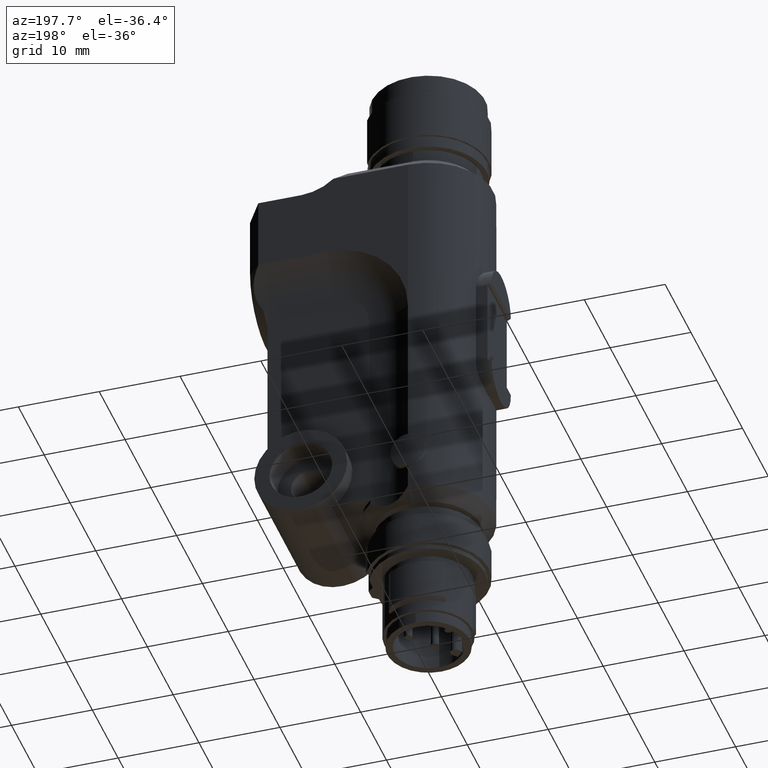
[diagram: clean part render]
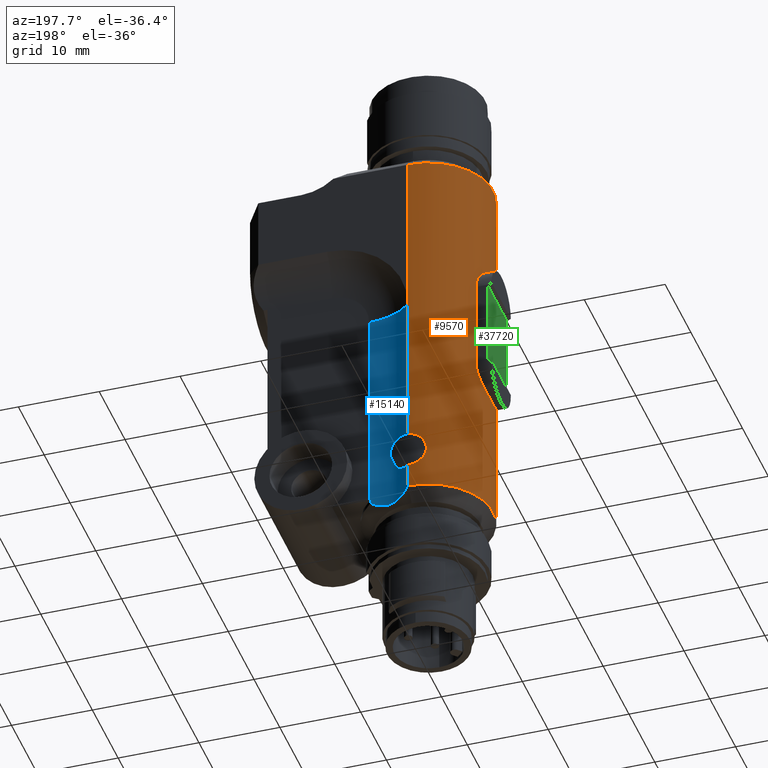
[diagram: same view with three faces highlighted in distinct colors, each labeled with its STEP entity id]
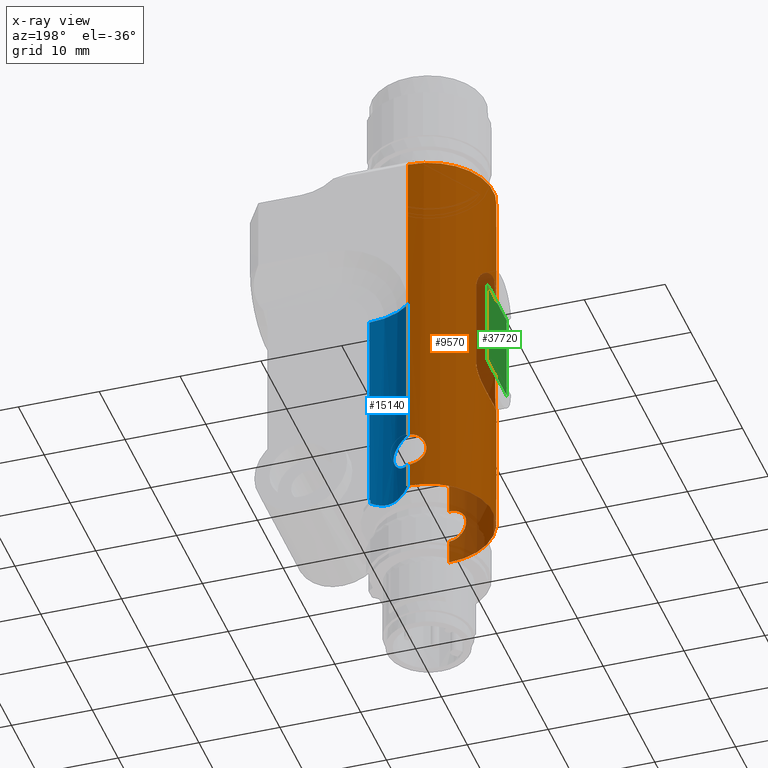
[diagram: x-ray of the same camera — body ghosted, the three highlighted faces saturated]
A machine part, auxiliary view with three faces highlighted in distinct colors.
The next image is the same camera in x-ray (body ghosted, the three faces saturated) — at least one of them is partly hidden behind the body in this view.
Their STEP definitions:

[orange] entity #9570 — the highlighted cylindrical surface (partial cylindrical patch) has radius 8 mm, axis along (0, -0, 1).
#10=CARTESIAN_POINT('',(8.88178419700125E-16,7.105427357601E-15,
2.00000000000001));
#20=DIRECTION('',(2.52970265222012E-16,6.19598451167187E-32,1.));
#30=DIRECTION('',(-1.,4.93038065763133E-31,2.52970265222012E-16));
#40=AXIS2_PLACEMENT_3D('',#10,#20,#30);
#50=CYLINDRICAL_SURFACE('',#40,8.);
#60=CARTESIAN_POINT('',(3.5527136788005E-15,-7.45249369999999,21.));
#70=DIRECTION('',(0.,-1.,0.));
#80=DIRECTION('',(0.,0.,-1.));
#90=AXIS2_PLACEMENT_3D('',#60,#70,#80);
#100=CYLINDRICAL_SURFACE('',#90,3.75);
#110=CARTESIAN_POINT('',(-3.75,-7.06664701255128,21.));
#120=CARTESIAN_POINT('',(-3.75,-7.06664701255128,20.9622104362613));
#130=CARTESIAN_POINT('',(-3.74942859424232,-7.06695032498839,
20.9243867502894));
#140=CARTESIAN_POINT('',(-3.74828380016548,-7.06755746728792,
20.8865603534168));
#150=CARTESIAN_POINT('',(-3.74713900714653,-7.0681646090264,
20.8487339914988));
#160=CARTESIAN_POINT('',(-3.74542082261613,-7.0690755819074,
20.8109050796101));
#170=CARTESIAN_POINT('',(-3.74312958225175,-7.07028860305399,
20.7731059047241));
#180=CARTESIAN_POINT('',(-3.74083834304713,-7.07150162358658,
20.7353067489707));
#190=CARTESIAN_POINT('',(-3.73797405385375,-7.07301668711691,
20.6975374922028));
#200=CARTESIAN_POINT('',(-3.73453944584964,-7.07482968893269,
20.6598307371459));
#210=CARTESIAN_POINT('',(-3.73110483821576,-7.07664269055304,
20.6221239861534));
#220=CARTESIAN_POINT('',(-3.72709992622747,-7.07875361893541,
20.5844798963572));
#230=CARTESIAN_POINT('',(-3.72252983140179,-7.08115609588841,
20.5469308503984));
#240=CARTESIAN_POINT('',(-3.71795973531558,-7.08355857350406,
20.5093817940827));
#250=CARTESIAN_POINT('',(-3.7128244787537,-7.08625258247461,
20.4719279353848));
#260=CARTESIAN_POINT('',(-3.70713149096909,-7.08922958498821,
20.4346009297286));
#270=CARTESIAN_POINT('',(-3.70143849948433,-7.09220658943671,
20.3972738998118));
#280=CARTESIAN_POINT('',(-3.69518780612069,-7.09546656530574,
20.3600738682327));
#290=CARTESIAN_POINT('',(-3.68838899287883,-7.0989989883934,
20.3230312878647));
#300=CARTESIAN_POINT('',(-3.68158872611831,-7.10253216667799,
20.2859807881613));
#310=CARTESIAN_POINT('',(-3.6742488419039,-7.10633340127321,
20.249127563852));
#320=CARTESIAN_POINT('',(-3.66635089432077,-7.11040583368594,
20.2123635866005));
#330=CARTESIAN_POINT('',(-3.65845354160557,-7.11447795936587,
20.1756023783862));
#340=CARTESIAN_POINT('',(-3.65000233948064,-7.11881907782992,
20.1389561137245));
#350=CARTESIAN_POINT('',(-3.64100325130742,-7.1234187946572,
20.102450378003));
#360=CARTESIAN_POINT('',(-3.62300502390901,-7.13261825440601,
20.0294386994625));
#370=CARTESIAN_POINT('',(-3.60281386340194,-7.14285342207956,
19.9569906865536));
#380=CARTESIAN_POINT('',(-3.58049794836459,-7.15402225621865,
19.8853097104505));
#390=CARTESIAN_POINT('',(-3.55818207077147,-7.16519107161738,
19.8136288546221));
#400=CARTESIAN_POINT('',(-3.5337423629257,-7.17729281992656,
19.742718027645));
#410=CARTESIAN_POINT('',(-3.50727330888313,-7.1902040261201,
19.6727720856185));
#420=CARTESIAN_POINT('',(-3.4808042051077,-7.20311525657259,
19.6028260121702));
#430=CARTESIAN_POINT('',(-3.4523068342849,-7.21683512812466,
19.5338473691768));
#440=CARTESIAN_POINT('',(-3.42189825801076,-7.2312248140847,
19.4660142400202));
#450=CARTESIAN_POINT('',(-3.40669361127227,-7.23841982675901,
19.4320968755012));
#460=CARTESIAN_POINT('',(-3.3910133040304,-7.2457812446602,
19.3984694393579));
#470=CARTESIAN_POINT('',(-3.37486877914837,-7.25329309510718,
19.3651419867372));
#480=CARTESIAN_POINT('',(-3.35871919226583,-7.26080730084124,
19.3318040845317));
#490=CARTESIAN_POINT('',(-3.34206957535632,-7.26848857440768,
19.2986931527084));
#500=CARTESIAN_POINT('',(-3.32492763044953,-7.27632161550619,
19.2658269255142));
#510=CARTESIAN_POINT('',(-3.29064375098917,-7.29198769297229,
19.2000944909758));
#520=CARTESIAN_POINT('',(-3.25438977413185,-7.30826130151174,
19.1353414010578));
#530=CARTESIAN_POINT('',(-3.21623930637308,-7.32501226785493,
19.0717093776781));
#540=CARTESIAN_POINT('',(-3.17808895638497,-7.34176318248782,
19.0080775507308));
#550=CARTESIAN_POINT('',(-3.13804276075912,-7.35899095483558,
18.9455680257059));
#560=CARTESIAN_POINT('',(-3.09619012056307,-7.37655791933473,
18.8843188478867));
#570=CARTESIAN_POINT('',(-3.05433753287283,-7.39412486179542,
18.823069746907));
#580=CARTESIAN_POINT('',(-3.01067922712032,-7.41203048132872,
18.7630821189251));
#590=CARTESIAN_POINT('',(-2.96531902982931,-7.43013344773854,
18.7044863207642));
#600=CARTESIAN_POINT('',(-2.91995881404468,-7.44823642152906,
18.6458904987136));
#610=CARTESIAN_POINT('',(-2.87289750609392,-7.46653623082868,
18.5886875352163));
#620=CARTESIAN_POINT('',(-2.82425140611186,-7.4848917156502,
18.5329969608252));
#630=CARTESIAN_POINT('',(-2.77560520630319,-7.50324723813899,
18.4773062721515));
#640=CARTESIAN_POINT('',(-2.72537509075847,-7.52165794144514,
18.4231289162121));
#650=CARTESIAN_POINT('',(-2.67368721277274,-7.53998651777618,
18.3705710337965));
#660=CARTESIAN_POINT('',(-2.62199913662969,-7.55831516437402,
18.3180129498882));
#670=CARTESIAN_POINT('',(-2.56885425890607,-7.57656121823896,
18.2670751984562));
#680=CARTESIAN_POINT('',(-2.51438506632529,-7.59459463949461,
18.2178483617458));
#690=CARTESIAN_POINT('',(-2.4599431907879,-7.61261901674341,
18.1686462129658));
#700=CARTESIAN_POINT('',(-2.40386306728991,-7.6305357673153,
18.1208681973593));
#710=CARTESIAN_POINT('',(-2.34623325944348,-7.64821479119173,
18.0746471165894));
#720=CARTESIAN_POINT('',(-2.28860481062824,-7.66589339815988,
18.0284271258091));
#730=CARTESIAN_POINT('',(-2.22943226871251,-7.68333226712402,
17.983769084913));
#740=CARTESIAN_POINT('',(-2.16883772670076,-7.70039888026844,
17.9408100883993));
#750=CARTESIAN_POINT('',(-2.12993925850212,-7.71135473679637,
17.9132327009935));
#760=CARTESIAN_POINT('',(-2.09045552344794,-7.72215714556869,
17.886355550313));
#770=CARTESIAN_POINT('',(-2.05042306332287,-7.73277215889577,
17.8602125451882));
#780=CARTESIAN_POINT('',(-2.01039062093209,-7.74338716752043,
17.8340695516447));
#790=CARTESIAN_POINT('',(-1.96980962031648,-7.75381471679433,
17.8086608222059));
#800=CARTESIAN_POINT('',(-1.92871936839724,-7.7640222564061,
17.7840177864345));
#810=CARTESIAN_POINT('',(-1.88762911862344,-7.77422979548491,
17.7593747519499));
#820=CARTESIAN_POINT('',(-1.84602980167479,-7.78421726236975,
17.7354975256949));
#830=CARTESIAN_POINT('',(-1.80396301796947,-7.79395390221154,
17.7124146505682));
#840=CARTESIAN_POINT('',(-1.76189621873631,-7.80369054564734,
17.6893317669211));
#850=CARTESIAN_POINT('',(-1.71936215333417,-7.81317630241255,
17.667043342578));
#860=CARTESIAN_POINT('',(-1.67640413418059,-7.8223825768689,
17.6455746872374));
#870=CARTESIAN_POINT('',(-1.63344607924893,-7.83158885899281,
17.6241060140165));
#880=CARTESIAN_POINT('',(-1.59006428575324,-7.8405156038501,
17.6034572086304));
#890=CARTESIAN_POINT('',(-1.54630307139363,-7.84913669210816,
17.5836500748023));
#900=CARTESIAN_POINT('',(-1.50254179797885,-7.85775779200025,
17.5638429142446));
#910=CARTESIAN_POINT('',(-1.45840133022721,-7.86607318698397,
17.5448775112776));
#920=CARTESIAN_POINT('',(-1.41392614657556,-7.87405948999815,
17.52677198387));
#930=CARTESIAN_POINT('',(-1.36945087721714,-7.88204580840249,
17.5086664215719));
#940=CARTESIAN_POINT('',(-1.32464112482673,-7.88970299529544,
17.4914208042595));
#950=CARTESIAN_POINT('',(-1.27954053894803,-7.89701057421025,
17.4750495025903));
#960=CARTESIAN_POINT('',(-1.23445649553091,-7.90431547277532,
17.4586842057573));
#970=CARTESIAN_POINT('',(-1.18897399256418,-7.91128855441993,
17.4431533476127));
#980=CARTESIAN_POINT('',(-1.14312712944595,-7.91790757497987,
17.4284792642438));
#990=CARTESIAN_POINT('',(-1.09728184159302,-7.92452636811501,
17.4138056850658));
#1000=CARTESIAN_POINT('',(-1.05107906414437,-7.93079000514482,
17.3999912977926));
#1010=CARTESIAN_POINT('',(-1.00457468731967,-7.93667623741766,
17.3870607951854));
#1020=CARTESIAN_POINT('',(-0.958070323098787,-7.9425624680952,
17.3741302960826));
#1030=CARTESIAN_POINT('',(-0.91126471872926,-7.94807123359572,
17.362083789248));
#1040=CARTESIAN_POINT('',(-0.864215970188127,-7.95318368685566,
17.3509411135249));
#1050=CARTESIAN_POINT('',(-0.817167199770532,-7.95829614249275,
17.3397984326207));
#1060=CARTESIAN_POINT('',(-0.769875664554486,-7.96301223693057,
17.3295596691833));
#1070=CARTESIAN_POINT('',(-0.722400462574792,-7.96731683640555,
17.3202394681609));
#1080=CARTESIAN_POINT('',(-0.674917994400989,-7.97162209470985,
17.3109178406593));
#1090=CARTESIAN_POINT('',(-0.627284110495528,-7.97551336326594,
17.3025201442415));
#1100=CARTESIAN_POINT('',(-0.579464633950828,-7.97898619738123,
17.2950410612262));
#1110=CARTESIAN_POINT('',(-0.53164077034835,-7.98245935010151,
17.2875612920642));
#1120=CARTESIAN_POINT('',(-0.483627226086785,-7.98551369615428,
17.2810009701397));
#1130=CARTESIAN_POINT('',(-0.435487868170667,-7.9881381007514,
17.2753724593355));
#1140=CARTESIAN_POINT('',(-0.387344534992662,-7.99076272206714,
17.2697434837391));
#1150=CARTESIAN_POINT('',(-0.33909317429733,-7.99295665883089,
17.2650478994188));
#1160=CARTESIAN_POINT('',(-0.290748168611907,-7.99471484810114,
17.2612882563042));
#1170=CARTESIAN_POINT('',(-0.242400000815443,-7.9964731523696,
17.2575283672819));
#1180=CARTESIAN_POINT('',(-0.19395303255421,-7.99779552654705,
17.2547048114614));
#1190=CARTESIAN_POINT('',(-0.145473285424903,-7.99867723584516,
17.2528227259405));
#1200=CARTESIAN_POINT('',(-0.0969982625670856,-7.99955885922216,
17.2509408238259));
#1210=CARTESIAN_POINT('',(-0.048474706623803,-8.00000032854873,
17.249999299096));
#1220=CARTESIAN_POINT('',(5.41915921421394E-5,-7.99999999981645,
17.2500000003916));
#1230=CARTESIAN_POINT('',(0.0485837232816764,-7.99999967107988,
17.2500007016963));
#1240=CARTESIAN_POINT('',(0.0970953191955309,-7.99955773822299,
17.2509432150776));
#1250=CARTESIAN_POINT('',(0.145579641170209,-7.99867530082805,
17.2528268564054));
#1260=CARTESIAN_POINT('',(0.194063453516121,-7.99779287270859,
17.2547104779338));
#1270=CARTESIAN_POINT('',(0.242499206630068,-7.99647010150742,
17.2575348855029));
#1280=CARTESIAN_POINT('',(0.290840253725658,-7.9947114986604,
17.2612954186225));
#1290=CARTESIAN_POINT('',(0.339186582482231,-7.99295270367141,
17.2650563626116));
#1300=CARTESIAN_POINT('',(0.387457892790535,-7.99075715353392,
17.2697554124755));
#1310=CARTESIAN_POINT('',(0.435589140934626,-7.98813257903872,
17.2753843016628));
#1320=CARTESIAN_POINT('',(0.483723073894847,-7.98550785814175,
17.281013504836));
#1330=CARTESIAN_POINT('',(0.531696715418273,-7.98245572869377,
17.2875690729617));
#1340=CARTESIAN_POINT('',(0.579537943669597,-7.97898087300923,
17.2950525277884));
#1350=CARTESIAN_POINT('',(0.627374569808317,-7.9755063515903,
17.30253526274));
#1360=CARTESIAN_POINT('',(0.675053662430221,-7.97161047068484,
17.3109429645863));
#1370=CARTESIAN_POINT('',(0.72251333167233,-7.96730660170397,
17.3202616281103));
#1380=CARTESIAN_POINT('',(0.769973006813481,-7.96300273218814,
17.3295802927926));
#1390=CARTESIAN_POINT('',(0.817212850813304,-7.95829092263126,
17.3398098341382));
#1400=CARTESIAN_POINT('',(0.86417258930038,-7.95318840062914,
17.3509308398029));
#1410=CARTESIAN_POINT('',(0.911119068985272,-7.94808731929368,
17.3620487055179));
#1420=CARTESIAN_POINT('',(0.957840158994311,-7.94259008310294,
17.3740698342287));
#1430=CARTESIAN_POINT('',(1.00432031124931,-7.93670843060331,
17.3869900757888));
#1440=CARTESIAN_POINT('',(1.05079734439345,-7.93082717279959,
17.3999094503193));
#1450=CARTESIAN_POINT('',(1.09701980569593,-7.92456305316852,
17.4137245588071));
#1460=CARTESIAN_POINT('',(1.14293399429637,-7.91793545595401,
17.428417453705));
#1470=CARTESIAN_POINT('',(1.18884815045825,-7.91130786342192,
17.4431103382223));
#1480=CARTESIAN_POINT('',(1.23445371411827,-7.90431684724641,
17.4586809136768));
#1490=CARTESIAN_POINT('',(1.27969792942736,-7.89698507086213,
17.4751066385748));
#1500=CARTESIAN_POINT('',(1.32494214182725,-7.88965329494927,
17.4915323624167));
#1510=CARTESIAN_POINT('',(1.36982470468543,-7.8819808215934,
17.5088131235478));
#1520=CARTESIAN_POINT('',(1.41429483715743,-7.87399327619461,
17.526922097932));
#1530=CARTESIAN_POINT('',(1.45876499341856,-7.86600572652291,
17.5450310820035));
#1540=CARTESIAN_POINT('',(1.50282244156862,-7.8577031738954,
17.5639681545826));
#1550=CARTESIAN_POINT('',(1.54641926044679,-7.8491138016285,
17.58370266649));
#1560=CARTESIAN_POINT('',(1.59001612764481,-7.8405244198417,
17.6034372002698));
#1570=CARTESIAN_POINT('',(1.63315211454625,-7.83164829139081,
17.6239690399052));
#1580=CARTESIAN_POINT('',(1.67578291074952,-7.8225156846145,
17.6452642971406));
#1590=CARTESIAN_POINT('',(1.71840833305296,-7.81338422906497,
17.6665568699649));
#1600=CARTESIAN_POINT('',(1.76064936840125,-7.80397053756271,
17.6886727658482));
#1610=CARTESIAN_POINT('',(1.80246831991056,-7.79429970912644,
17.7115949221774));
#1620=CARTESIAN_POINT('',(1.8442871185956,-7.78462891603151,
17.7345169947392));
#1630=CARTESIAN_POINT('',(1.8856832790031,-7.77470111149521,
17.7582450573716));
#1640=CARTESIAN_POINT('',(1.92661780343337,-7.76454402006284,
17.7827583492231));
#1650=CARTESIAN_POINT('',(1.96755228200006,-7.75438694001061,
17.8072716136096));
#1660=CARTESIAN_POINT('',(2.0080249589417,-7.74400062076353,
17.8325700213444));
#1670=CARTESIAN_POINT('',(2.04799737029187,-7.7334149488617,
17.8586297939788));
#1680=CARTESIAN_POINT('',(2.08796975310685,-7.72282928451668,
17.8846895480099));
#1690=CARTESIAN_POINT('',(2.1274417148425,-7.71204431922273,
17.911510572896));
#1700=CARTESIAN_POINT('',(2.16637594802541,-7.70109182206114,
17.9390662777811));
#1710=CARTESIAN_POINT('',(2.22702602177813,-7.68403049308861,
17.9819913695823));
#1720=CARTESIAN_POINT('',(2.28636997334391,-7.66656248878033,
18.0266994075214));
#1730=CARTESIAN_POINT('',(2.34427573231116,-7.64881502527659,
18.0730781884551));
#1740=CARTESIAN_POINT('',(2.40218152029461,-7.63106755287971,
18.119456992629));
#1750=CARTESIAN_POINT('',(2.45864797443236,-7.61304113300205,
18.1675055811809));
#1760=CARTESIAN_POINT('',(2.51355632764945,-7.59486896448737,
18.2170996087295));
#1770=CARTESIAN_POINT('',(2.56846480482936,-7.57669675494662,
18.2666937482431));
#1780=CARTESIAN_POINT('',(2.62181420593595,-7.55837930583212,
18.3178323412621));
#1790=CARTESIAN_POINT('',(2.67350157153302,-7.54005234378304,
18.3703822811882));
#1800=CARTESIAN_POINT('',(2.72518914544916,-7.52172530786957,
18.4229324329099));
#1810=CARTESIAN_POINT('',(2.77521386614269,-7.50338924930237,
18.4768929299198));
#1820=CARTESIAN_POINT('',(2.82349027220282,-7.48517886778773,
18.5321258778503));
#1830=CARTESIAN_POINT('',(2.87176065459632,-7.46697075846518,
18.5873519341148));
#1840=CARTESIAN_POINT('',(2.91857108703438,-7.44877924985932,
18.6441797525965));
#1850=CARTESIAN_POINT('',(2.96378489143664,-7.43074552903707,
18.7025059048395));
#1860=CARTESIAN_POINT('',(3.00899845378938,-7.41271190475732,
18.7608317448368));
#1870=CARTESIAN_POINT('',(3.05261424685037,-7.39483669270899,
18.8206546471971));
#1880=CARTESIAN_POINT('',(3.09450349507541,-7.37726562619102,
18.8818526682681));
#1890=CARTESIAN_POINT('',(3.13639263894129,-7.35969460344805,
18.9430505368758));
#1900=CARTESIAN_POINT('',(3.17655432932396,-7.34242831846886,
19.0056223158211));
#1910=CARTESIAN_POINT('',(3.21487202483244,-7.32561245657657,
19.0694306891619));
#1920=CARTESIAN_POINT('',(3.25318969944129,-7.30879660385615,
19.1332390276997));
#1930=CARTESIAN_POINT('',(3.28966251933165,-7.29243178783151,
19.1982825751889));
#1940=CARTESIAN_POINT('',(3.32418918407614,-7.27665900454812,
19.2644118378857));
#1950=CARTESIAN_POINT('',(3.35871590287804,-7.26088619656973,
19.3305412041192));
#1960=CARTESIAN_POINT('',(3.39129567066393,-7.24570603142258,
19.3977546980787));
#1970=CARTESIAN_POINT('',(3.4218447560406,-7.23125013158565,
19.4658948974867));
#1980=CARTESIAN_POINT('',(3.45239396447542,-7.21679417351731,
19.5340353713777));
#1990=CARTESIAN_POINT('',(3.48091179834587,-7.2030630482529,
19.6031007568663));
#2000=CARTESIAN_POINT('',(3.50733362453253,-7.19017460471702,
19.6729314839822));
#2010=CARTESIAN_POINT('',(3.52054454194626,-7.18373038084161,
19.7078468589586));
#2020=CARTESIAN_POINT('',(3.53323170123619,-7.17749661528682,
19.742953427714));
#2030=CARTESIAN_POINT('',(3.54538880773186,-7.17148647087964,
19.7782315268392));
#2040=CARTESIAN_POINT('',(3.55754314994702,-7.16547769305792,
19.813501604437));
#2050=CARTESIAN_POINT('',(3.56919517949988,-7.1596788232601,
19.8490230098885));
#2060=CARTESIAN_POINT('',(3.58033159633335,-7.15410551084552,
19.8847755112559));
#2070=CARTESIAN_POINT('',(3.60260425300875,-7.14295897459325,
19.9562799457748));
#2080=CARTESIAN_POINT('',(3.62281014040467,-7.13271737249294,
20.0287022327099));
#2090=CARTESIAN_POINT('',(3.64084954900308,-7.12349735465761,
20.1018270982352));
#2100=CARTESIAN_POINT('',(3.65888892564608,-7.11427735315484,
20.1749518342253));
#2110=CARTESIAN_POINT('',(3.67476077216211,-7.10607974614195,
20.2487754155215));
#2120=CARTESIAN_POINT('',(3.68839550236182,-7.09899560630958,
20.3230667550598));
#2130=CARTESIAN_POINT('',(3.69521282605487,-7.09545355790695,
20.3602121992164));
#2140=CARTESIAN_POINT('',(3.70147128914889,-7.09218947736093,
20.3974739667248));
#2150=CARTESIAN_POINT('',(3.70716525887748,-7.08921192682629,
20.4348223789339));
#2160=CARTESIAN_POINT('',(3.71285923256658,-7.08623437422057,
20.4721708171212));
#2170=CARTESIAN_POINT('',(3.71798869686364,-7.08354336522133,
20.50960576184));
#2180=CARTESIAN_POINT('',(3.7225501455611,-7.08114541679446,
20.5470977878374));
#2190=CARTESIAN_POINT('',(3.72711196885325,-7.07874727144357,
20.5845928927501));
#2200=CARTESIAN_POINT('',(3.73110445671919,-7.07664288585656,
20.6221317980275));
#2210=CARTESIAN_POINT('',(3.73452964849611,-7.0748348605818,
20.659723194291));
#2220=CARTESIAN_POINT('',(3.73795592883901,-7.07302626069548,
20.6973265375396));
#2230=CARTESIAN_POINT('',(3.74081851496045,-7.07151211325482,
20.7350304247197));
#2240=CARTESIAN_POINT('',(3.74311122008489,-7.07029832426289,
20.7728031820763));
#2250=CARTESIAN_POINT('',(3.74540392314307,-7.06908453636487,
20.810575905391));
#2260=CARTESIAN_POINT('',(3.74712672663919,-7.06817112031855,
20.8484173375361));
#2270=CARTESIAN_POINT('',(3.74827574857891,-7.06756173744632,
20.8862946236308));
#2280=CARTESIAN_POINT('',(3.74942476996209,-7.06695235486925,
20.9241718913794));
#2290=CARTESIAN_POINT('',(3.75000000000008,-7.06664701255125,
20.9620848459743));
#2300=CARTESIAN_POINT('',(3.75000000000001,-7.06664701255128,
21.000000000007));
#2310=B_SPLINE_CURVE_WITH_KNOTS('',3,(#110,#120,#130,#140,#150,#160,#170
,#180,#190,#200,#210,#220,#230,#240,#250,#260,#270,#280,#290,#300,#310,
#320,#330,#340,#350,#360,#370,#380,#390,#400,#410,#420,#430,#440,#450,
#460,#470,#480,#490,#500,#510,#520,#530,#540,#550,#560,#570,#580,#590,
#600,#610,#620,#630,#640,#650,#660,#670,#680,#690,#700,#710,#720,#730,
#740,#750,#760,#770,#780,#790,#800,#810,#820,#830,#840,#850,#860,#870,
#880,#890,#900,#910,#920,#930,#940,#950,#960,#970,#980,#990,#1000,#1010,
#1020,#1030,#1040,#1050,#1060,#1070,#1080,#1090,#1100,#1110,#1120,#1130,
#1140,#1150,#1160,#1170,#1180,#1190,#1200,#1210,#1220,#1230,#1240,#1250,
#1260,#1270,#1280,#1290,#1300,#1310,#1320,#1330,#1340,#1350,#1360,#1370,
#1380,#1390,#1400,#1410,#1420,#1430,#1440,#1450,#1460,#1470,#1480,#1490,
#1500,#1510,#1520,#1530,#1540,#1550,#1560,#1570,#1580,#1590,#1600,#1610,
#1620,#1630,#1640,#1650,#1660,#1670,#1680,#1690,#1700,#1710,#1720,#1730,
#1740,#1750,#1760,#1770,#1780,#1790,#1800,#1810,#1820,#1830,#1840,#1850,
#1860,#1870,#1880,#1890,#1900,#1910,#1920,#1930,#1940,#1950,#1960,#1970,
#1980,#1990,#2000,#2010,#2020,#2030,#2040,#2050,#2060,#2070,#2080,#2090,
#2100,#2110,#2120,#2130,#2140,#2150,#2160,#2170,#2180,#2190,#2200,#2210,
#2220,#2230,#2240,#2250,#2260,#2270,#2280,#2290,#2300),.UNSPECIFIED.,.F.
,.F.,(4,3,3,3,3,3,3,3,3,3,3,3,3,3,3,3,3,3,3,3,3,3,3,3,3,3,3,3,3,3,3,3,3,
3,3,3,3,3,3,3,3,3,3,3,3,3,3,3,3,3,3,3,3,3,3,3,3,3,3,3,3,3,3,3,3,3,3,3,3,
3,3,3,3,4),(0.,0.113461824634274,0.227071672981698,0.340768340881581,
0.454486787656516,0.568159700257465,0.681719002017631,0.795139969896352,
0.9086913643318,1.13621223292821,1.3639416575175,1.59139939997992,
1.70486740083483,1.81839664092296,2.0461704380488,2.27464142715075,
2.50344712111923,2.73218631621307,2.96044376428692,3.18781468050841,
3.41512726380147,3.64342425966058,3.79028684450624,3.93724483445759,
4.08417940001358,4.23097789313865,4.37753686297224,4.5237653090346,
4.6695882767318,4.81524891126022,4.9610828517159,5.1069621373868,
5.25276025495901,5.39837938925112,5.54399225382351,5.68957526349231,
5.83516163680521,5.98073363945989,6.12630371243939,6.27187605618918,
6.41746875411878,6.56305389832502,6.70871411911066,6.85435192900284,
7.00001006504111,7.14590529183837,7.29193999050409,7.43799713501972,
7.58395160805631,7.72967391120984,7.87544005346136,8.02160906728527,
8.16810518968349,8.31483925265034,8.54365214960238,8.77239413134631,
9.00064232524797,9.22798070427878,9.45533296255548,9.68364702934677,
9.91246410325994,10.141330811471,10.3698262816604,10.5975901877461,
10.7111093908461,10.824581003593,11.0520207929982,11.2796761087395,
11.3934238965102,11.5070406128494,11.6204824400337,11.7339837851222,
11.8476311822296,11.9613588928985),.UNSPECIFIED.);
#2320=SURFACE_CURVE('',#2310,(#50,#100),.CURVE_3D.);
#2330=CARTESIAN_POINT('',(-3.75000000000002,-7.06664701255127,21.));
#2340=VERTEX_POINT('',#2330);
#2350=CARTESIAN_POINT('',(3.75000000000001,-7.06664701255128,
21.000000000014));
#2360=VERTEX_POINT('',#2350);
#2370=EDGE_CURVE('',#2340,#2360,#2320,.T.);
#2380=ORIENTED_EDGE('',*,*,#2370,.F.);
#2390=CARTESIAN_POINT('',(3.74999999999999,-7.06664701255129,
2.00000000000001));
#2400=DIRECTION('',(2.52970265222012E-16,6.19598451167187E-32,1.));
#2410=VECTOR('',#2400,1.);
#2420=LINE('',#2390,#2410);
#2430=CARTESIAN_POINT('',(3.75,-7.06664701255129,32.));
#2440=VERTEX_POINT('',#2430);
#2450=EDGE_CURVE('',#2360,#2440,#2420,.T.);
#2460=ORIENTED_EDGE('',*,*,#2450,.F.);
#2470=CARTESIAN_POINT('',(3.5527136788005E-15,-7.45249353227116,32.));
#2480=DIRECTION('',(0.,-1.,0.));
#2490=DIRECTION('',(0.,0.,-1.));
#2500=AXIS2_PLACEMENT_3D('',#2470,#2480,#2490);
#2510=CYLINDRICAL_SURFACE('',#2500,3.75);
#2520=CARTESIAN_POINT('',(3.75,-7.06664701255129,32.));
#2530=CARTESIAN_POINT('',(3.75,-7.06664701255129,32.0379151540327));
#2540=CARTESIAN_POINT('',(3.74942476996195,-7.06695235486932,
32.0758281086275));
#2550=CARTESIAN_POINT('',(3.7482757485787,-7.06756173744643,
32.1137053763761));
#2560=CARTESIAN_POINT('',(3.74712672663891,-7.0681711203187,
32.1515826624708));
#2570=CARTESIAN_POINT('',(3.74540392314273,-7.06908453636505,
32.1894240946158));
#2580=CARTESIAN_POINT('',(3.74311122008447,-7.07029832426311,
32.2271968179305));
#2590=CARTESIAN_POINT('',(3.74081851495994,-7.07151211325509,
32.2649695752876));
#2600=CARTESIAN_POINT('',(3.73795592883841,-7.07302626069579,
32.3026734624677));
#2610=CARTESIAN_POINT('',(3.7345296484955,-7.07483486058212,
32.3402768057157));
#2620=CARTESIAN_POINT('',(3.73110445671853,-7.07664288585691,
32.3778682019791));
#2630=CARTESIAN_POINT('',(3.72711196885252,-7.07874727144396,
32.4154071072564));
#2640=CARTESIAN_POINT('',(3.7225501455603,-7.08114541679488,
32.4529022121691));
#2650=CARTESIAN_POINT('',(3.71798869686279,-7.08354336522178,
32.4903942381665));
#2660=CARTESIAN_POINT('',(3.71285923256567,-7.08623437422105,
32.5278291828852));
#2670=CARTESIAN_POINT('',(3.70716525887651,-7.0892119268268,
32.5651776210724));
#2680=CARTESIAN_POINT('',(3.70147128914786,-7.09218947736147,
32.6025260332815));
#2690=CARTESIAN_POINT('',(3.69521282605378,-7.09545355790752,
32.6397878007899));
#2700=CARTESIAN_POINT('',(3.68839550236067,-7.09899560631017,
32.6769332449464));
#2710=CARTESIAN_POINT('',(3.67476077216087,-7.1060797461426,
32.7512245844846));
#2720=CARTESIAN_POINT('',(3.65888892564471,-7.11427735315555,
32.8250481657807));
#2730=CARTESIAN_POINT('',(3.64084954900162,-7.12349735465836,
32.8981729017707));
#2740=CARTESIAN_POINT('',(3.6228101404031,-7.13271737249373,
32.9712977672959));
#2750=CARTESIAN_POINT('',(3.6026042530071,-7.14295897459408,
33.0437200542309));
#2760=CARTESIAN_POINT('',(3.58033159633161,-7.15410551084639,
33.1152244887497));
#2770=CARTESIAN_POINT('',(3.56919517949809,-7.159678823261,
33.1509769901171));
#2780=CARTESIAN_POINT('',(3.55754314994521,-7.16547769305882,
33.1864983955684));
#2790=CARTESIAN_POINT('',(3.54538880772999,-7.17148647088056,
33.2217684731662));
#2800=CARTESIAN_POINT('',(3.53323170123427,-7.17749661528777,
33.2570465722914));
#2810=CARTESIAN_POINT('',(3.5205445419443,-7.18373038084257,
33.2921531410468));
#2820=CARTESIAN_POINT('',(3.50733362453054,-7.19017460471799,
33.3270685160231));
#2830=CARTESIAN_POINT('',(3.4809117983438,-7.2030630482539,
33.3968992431388));
#2840=CARTESIAN_POINT('',(3.45239396447326,-7.21679417351834,
33.4659646286274));
#2850=CARTESIAN_POINT('',(3.42184475603839,-7.2312501315867,
33.5341051025183));
#2860=CARTESIAN_POINT('',(3.39129567066165,-7.24570603142365,
33.6022453019261));
#2870=CARTESIAN_POINT('',(3.3587159028757,-7.26088619657082,
33.6694587958855));
#2880=CARTESIAN_POINT('',(3.32418918407374,-7.27665900454922,
33.7355881621189));
#2890=CARTESIAN_POINT('',(3.28966251934105,-7.2924317878272,
33.8017174247928));
#2900=CARTESIAN_POINT('',(3.25318969945193,-7.3087966038515,
33.8667609722827));
#2910=CARTESIAN_POINT('',(3.21487202482989,-7.32561245657769,
33.9305693108423));
#2920=CARTESIAN_POINT('',(3.17655432932137,-7.34242831846998,
33.994377684183));
#2930=CARTESIAN_POINT('',(3.13639263893865,-7.35969460344917,
34.0569494631282));
#2940=CARTESIAN_POINT('',(3.09450349507274,-7.37726562619214,
34.1181473317358));
#2950=CARTESIAN_POINT('',(3.05261424684766,-7.39483669271012,
34.1793453528067));
#2960=CARTESIAN_POINT('',(3.00899845378665,-7.41271190475843,
34.2391682551668));
#2970=CARTESIAN_POINT('',(2.96378489143389,-7.43074552903817,
34.297494095164));
#2980=CARTESIAN_POINT('',(2.91857108703264,-7.44877924986,
34.3558202474056));
#2990=CARTESIAN_POINT('',(2.8717606545946,-7.46697075846585,
34.4126480658873));
#3000=CARTESIAN_POINT('',(2.82349027220002,-7.48517886778879,
34.4678741221529));
#3010=CARTESIAN_POINT('',(2.77521386614192,-7.50338924930264,
34.5231070700809));
#3020=CARTESIAN_POINT('',(2.72518914544851,-7.52172530786983,
34.5770675670909));
#3030=CARTESIAN_POINT('',(2.67350157153018,-7.54005234378405,
34.6296177188146));
#3040=CARTESIAN_POINT('',(2.62181420593308,-7.55837930583311,
34.6821676587407));
#3050=CARTESIAN_POINT('',(2.5684648048265,-7.57669675494759,
34.7333062517596));
#3060=CARTESIAN_POINT('',(2.51355632764658,-7.59486896448832,
34.7829003912731));
#3070=CARTESIAN_POINT('',(2.45864797442947,-7.61304113300299,
34.8324944188216));
#3080=CARTESIAN_POINT('',(2.40218152029176,-7.63106755288061,
34.8805430073733));
#3090=CARTESIAN_POINT('',(2.3442757323083,-7.64881502527747,
34.9269218115471));
#3100=CARTESIAN_POINT('',(2.28636997332459,-7.66656248878624,
34.973300592494));
#3110=CARTESIAN_POINT('',(2.22702602175801,-7.68403049309429,
35.018008630432));
#3120=CARTESIAN_POINT('',(2.16637594802258,-7.70109182206194,
35.0609337222209));
#3130=CARTESIAN_POINT('',(2.12744171483969,-7.71204431922351,
35.0884894271059));
#3140=CARTESIAN_POINT('',(2.08796975310393,-7.72282928451747,
35.1153104519921));
#3150=CARTESIAN_POINT('',(2.04799737028898,-7.73341494886246,
35.1413702060231));
#3160=CARTESIAN_POINT('',(2.00802495894026,-7.74400062076389,
35.1674299786565));
#3170=CARTESIAN_POINT('',(1.96755228199862,-7.75438694001098,
35.1927283863913));
#3180=CARTESIAN_POINT('',(1.9266178034304,-7.76454402006357,
35.2172416507787));
#3190=CARTESIAN_POINT('',(1.8856832790001,-7.77470111149593,
35.2417549426302));
#3200=CARTESIAN_POINT('',(1.84428711859262,-7.78462891603222,
35.2654830052625));
#3210=CARTESIAN_POINT('',(1.80246831990753,-7.79429970912715,
35.2884050778243));
#3220=CARTESIAN_POINT('',(1.76064936839677,-7.80397053756373,
35.3113272341542));
#3230=CARTESIAN_POINT('',(1.71840833304842,-7.81338422906596,
35.3334431300374));
#3240=CARTESIAN_POINT('',(1.67578291074644,-7.82251568461516,
35.354735702861));
#3250=CARTESIAN_POINT('',(1.6331521145457,-7.83164829139091,
35.3760309600951));
#3260=CARTESIAN_POINT('',(1.59001612764428,-7.84052441984182,
35.3965627997304));
#3270=CARTESIAN_POINT('',(1.54641926044364,-7.84911380162912,
35.4162973335114));
#3280=CARTESIAN_POINT('',(1.50282244156814,-7.85770317389548,
35.4360318454176));
#3290=CARTESIAN_POINT('',(1.45876499341807,-7.86600572652301,
35.4549689179967));
#3300=CARTESIAN_POINT('',(1.41429483715422,-7.87399327619518,
35.4730779020693));
#3310=CARTESIAN_POINT('',(1.36982470467952,-7.88198082159444,
35.4911868764546));
#3320=CARTESIAN_POINT('',(1.32494214182128,-7.88965329495026,
35.5084676375856));
#3330=CARTESIAN_POINT('',(1.27969792942408,-7.89698507086266,
35.5248933614264));
#3340=CARTESIAN_POINT('',(1.23445371411751,-7.90431684724652,
35.5413190863234));
#3350=CARTESIAN_POINT('',(1.18884815045752,-7.91130786342205,
35.556889661778));
#3360=CARTESIAN_POINT('',(1.14293399429305,-7.91793545595449,
35.5715825462961));
#3370=CARTESIAN_POINT('',(1.09701980569261,-7.92456305316898,
35.5862754411939));
#3380=CARTESIAN_POINT('',(1.0507973443901,-7.93082717280003,
35.6000905496817));
#3390=CARTESIAN_POINT('',(1.00432031124595,-7.93670843060373,
35.6130099242122));
#3400=CARTESIAN_POINT('',(0.957840158990946,-7.94259008310335,
35.6259301657722));
#3410=CARTESIAN_POINT('',(0.911119068981895,-7.94808731929407,
35.637951294483));
#3420=CARTESIAN_POINT('',(0.864172589296987,-7.9531884006295,
35.6490691601979));
#3430=CARTESIAN_POINT('',(0.817212850807338,-7.95829092263189,
35.6601901658632));
#3440=CARTESIAN_POINT('',(0.769973006807481,-7.96300273218871,
35.6704197072086));
#3450=CARTESIAN_POINT('',(0.722513331668905,-7.96730660170428,
35.6797383718903));
#3460=CARTESIAN_POINT('',(0.675053662428818,-7.97161047068495,
35.689057035414));
#3470=CARTESIAN_POINT('',(0.627374569806936,-7.97550635159042,
35.6974647372602));
#3480=CARTESIAN_POINT('',(0.579537943666145,-7.97898087300948,
35.7049474722122));
#3490=CARTESIAN_POINT('',(0.531696715414815,-7.982455728694,
35.7124309270388));
#3500=CARTESIAN_POINT('',(0.483723073891384,-7.98550785814196,
35.7189864951645));
#3510=CARTESIAN_POINT('',(0.435589140931152,-7.98813257903891,
35.7246156983376));
#3520=CARTESIAN_POINT('',(0.38745789278705,-7.99075715353409,
35.7302445875249));
#3530=CARTESIAN_POINT('',(0.339186582478749,-7.99295270367155,
35.7349436373887));
#3540=CARTESIAN_POINT('',(0.290840253722171,-7.99471149866052,
35.7387045813777));
#3550=CARTESIAN_POINT('',(0.242499206626575,-7.99647010150752,
35.7424651144973));
#3560=CARTESIAN_POINT('',(0.194063453512626,-7.99779287270867,
35.7452895220664));
#3570=CARTESIAN_POINT('',(0.145579641166714,-7.99867530082811,
35.7471731435948));
#3580=CARTESIAN_POINT('',(0.0970953191920377,-7.99955773822303,
35.7490567849224));
#3590=CARTESIAN_POINT('',(0.0485837232781789,-7.9999996710799,
35.7499992983038));
#3600=CARTESIAN_POINT('',(5.41915886440386E-5,-7.99999999981645,
35.7499999996084));
#3610=CARTESIAN_POINT('',(-0.0484747066273015,-8.00000032854871,
35.7500007009039));
#3620=CARTESIAN_POINT('',(-0.0969982625705824,-7.99955885922212,
35.7490591761741));
#3630=CARTESIAN_POINT('',(-0.145473285428397,-7.9986772358451,
35.7471772740593));
#3640=CARTESIAN_POINT('',(-0.193953032557701,-7.99779552654696,
35.7452951885385));
#3650=CARTESIAN_POINT('',(-0.242400000818927,-7.99647315236949,
35.7424716327178));
#3660=CARTESIAN_POINT('',(-0.29074816861539,-7.99471484810101,
35.7387117436955));
#3670=CARTESIAN_POINT('',(-0.339093174300808,-7.99295665883075,
35.7349521005809));
#3680=CARTESIAN_POINT('',(-0.387344534996132,-7.99076272206697,
35.7302565162606));
#3690=CARTESIAN_POINT('',(-0.435487868174132,-7.98813810075121,
35.7246275406641));
#3700=CARTESIAN_POINT('',(-0.483627226090245,-7.98551369615407,
35.7189990298599));
#3710=CARTESIAN_POINT('',(-0.531640770351804,-7.98245935010128,
35.7124387079353));
#3720=CARTESIAN_POINT('',(-0.579464633954271,-7.97898619738098,
35.7049589387733));
#3730=CARTESIAN_POINT('',(-0.627284110498964,-7.97551336326567,
35.6974798557579));
#3740=CARTESIAN_POINT('',(-0.674917994404412,-7.97162209470956,
35.6890821593401));
#3750=CARTESIAN_POINT('',(-0.722400462578206,-7.96731683640524,
35.6797605318384));
#3760=CARTESIAN_POINT('',(-0.769875664560015,-7.96301223693005,
35.6704403308156));
#3770=CARTESIAN_POINT('',(-0.817167199776025,-7.95829614249218,
35.660201567378));
#3780=CARTESIAN_POINT('',(-0.864215970191511,-7.95318368685529,
35.6490588864743));
#3790=CARTESIAN_POINT('',(-0.911264718732633,-7.94807123359533,
35.6379162107511));
#3800=CARTESIAN_POINT('',(-0.958070323102147,-7.94256246809479,
35.6258697039165));
#3810=CARTESIAN_POINT('',(-1.00457468732302,-7.93667623741724,
35.6129392048137));
#3820=CARTESIAN_POINT('',(-1.05107906415059,-7.93079000514401,
35.6000087022056));
#3830=CARTESIAN_POINT('',(-1.0972818415992,-7.92452636811414,
35.5861943149323));
#3840=CARTESIAN_POINT('',(-1.14312712944924,-7.91790757497939,
35.5715207357552));
#3850=CARTESIAN_POINT('',(-1.18897399256745,-7.91128855441944,
35.5568466523862));
#3860=CARTESIAN_POINT('',(-1.23445649553417,-7.90431547277481,
35.5413157942416));
#3870=CARTESIAN_POINT('',(-1.27954053895127,-7.89701057420972,
35.5249504974085));
#3880=CARTESIAN_POINT('',(-1.32464112482997,-7.8897029952949,
35.5085791957392));
#3890=CARTESIAN_POINT('',(-1.36945087722034,-7.88204580840193,
35.4913335784269));
#3900=CARTESIAN_POINT('',(-1.41392614657875,-7.87405948999757,
35.4732280161286));
#3910=CARTESIAN_POINT('',(-1.45840133023226,-7.86607318698304,
35.4551224887203));
#3920=CARTESIAN_POINT('',(-1.50254179798386,-7.85775779199928,
35.4361570857531));
#3930=CARTESIAN_POINT('',(-1.54630307139677,-7.84913669210754,
35.4163499251963));
#3940=CARTESIAN_POINT('',(-1.59006428575836,-7.84051560384908,
35.3965427913672));
#3950=CARTESIAN_POINT('',(-1.63344607925398,-7.83158885899174,
35.375893985981));
#3960=CARTESIAN_POINT('',(-1.67640413418367,-7.82238257686824,
35.354425312761));
#3970=CARTESIAN_POINT('',(-1.71936215333725,-7.81317630241187,
35.3329566574204));
#3980=CARTESIAN_POINT('',(-1.76189621873933,-7.80369054564666,
35.3106682330773));
#3990=CARTESIAN_POINT('',(-1.80396301797248,-7.79395390221084,
35.2875853494301));
#4000=CARTESIAN_POINT('',(-1.84602980167781,-7.78421726236903,
35.2645024743034));
#4010=CARTESIAN_POINT('',(-1.88762911862637,-7.7742297954842,
35.2406252480484));
#4020=CARTESIAN_POINT('',(-1.92871936840019,-7.76402225640537,
35.2159822135637));
#4030=CARTESIAN_POINT('',(-1.96980962031939,-7.75381471679359,
35.1913391777923));
#4040=CARTESIAN_POINT('',(-2.010390620935,-7.74338716751967,
35.1659304483535));
#4050=CARTESIAN_POINT('',(-2.05042306332573,-7.73277215889501,
35.1397874548099));
#4060=CARTESIAN_POINT('',(-2.09045552345078,-7.72215714556792,
35.1136444496851));
#4070=CARTESIAN_POINT('',(-2.12993925850494,-7.71135473679559,
35.0867672990045));
#4080=CARTESIAN_POINT('',(-2.16883772670355,-7.70039888026765,
35.0591899115987));
#4090=CARTESIAN_POINT('',(-2.22943226869706,-7.68333226712835,
35.0162309150979));
#4100=CARTESIAN_POINT('',(-2.28860481061352,-7.66589339816441,
34.9715728742028));
#4110=CARTESIAN_POINT('',(-2.34623325944597,-7.64821479119097,
34.9253528834086));
#4120=CARTESIAN_POINT('',(-2.40386306728279,-7.63053576731746,
34.8791318026463));
#4130=CARTESIAN_POINT('',(-2.45994319078115,-7.61261901674566,
34.8313537870404));
#4140=CARTESIAN_POINT('',(-2.51438506632748,-7.59459463949389,
34.7821516382522));
#4150=CARTESIAN_POINT('',(-2.56885425890819,-7.57656121823824,
34.7329248015418));
#4160=CARTESIAN_POINT('',(-2.62199913663169,-7.55831516437332,
34.6819870501098));
#4170=CARTESIAN_POINT('',(-2.67368721277466,-7.5399865177755,
34.6294289662015));
#4180=CARTESIAN_POINT('',(-2.72537509075555,-7.52165794144616,
34.5768710837908));
#4190=CARTESIAN_POINT('',(-2.77560520630047,-7.50324723814003,
34.5226937278517));
#4200=CARTESIAN_POINT('',(-2.82425140611354,-7.48489171564956,
34.4670030391729));
#4210=CARTESIAN_POINT('',(-2.87289750609554,-7.46653623082806,
34.4113124647818));
#4220=CARTESIAN_POINT('',(-2.91995881404617,-7.44823642152847,
34.3541095012846));
#4230=CARTESIAN_POINT('',(-2.96531902983074,-7.43013344773797,
34.2955136792339));
#4240=CARTESIAN_POINT('',(-3.01067922711703,-7.41203048133002,
34.2369178810791));
#4250=CARTESIAN_POINT('',(-3.05433753286979,-7.3941248617967,
34.1769302530975));
#4260=CARTESIAN_POINT('',(-3.09619012056427,-7.37655791933422,
34.1156811521115));
#4270=CARTESIAN_POINT('',(-3.1380427607689,-7.35899095483147,
34.0544319742797));
#4280=CARTESIAN_POINT('',(-3.17808895639393,-7.34176318248388,
33.9919224492543));
#4290=CARTESIAN_POINT('',(-3.21623930637407,-7.32501226785449,
33.9282906223202));
#4300=CARTESIAN_POINT('',(-3.25438977414412,-7.30826130150634,
33.8646585989217));
#4310=CARTESIAN_POINT('',(-3.29064375100026,-7.29198769296722,
33.799905509003));
#4320=CARTESIAN_POINT('',(-3.32492763045031,-7.27632161550583,
33.7341730744843));
#4330=CARTESIAN_POINT('',(-3.34206957535707,-7.26848857440734,
33.7013068472901));
#4340=CARTESIAN_POINT('',(-3.35871919226655,-7.2608073008409,
33.6681959154668));
#4350=CARTESIAN_POINT('',(-3.37486877914907,-7.25329309510685,
33.6348580132614));
#4360=CARTESIAN_POINT('',(-3.39101330403105,-7.2457812446599,
33.6015305606407));
#4370=CARTESIAN_POINT('',(-3.40669361127293,-7.23841982675869,
33.5679031244973));
#4380=CARTESIAN_POINT('',(-3.42189825801137,-7.23122481408441,
33.5339857599785));
#4390=CARTESIAN_POINT('',(-3.45230683428545,-7.2168351281244,
33.4661526308219));
#4400=CARTESIAN_POINT('',(-3.48080420510821,-7.20311525657234,
33.3971739878285));
#4410=CARTESIAN_POINT('',(-3.50727330888358,-7.19020402611988,
33.3272279143803));
#4420=CARTESIAN_POINT('',(-3.5337423629261,-7.17729281992636,
33.2572819723539));
#4430=CARTESIAN_POINT('',(-3.55818207077185,-7.1651910716172,
33.1863711453768));
#4440=CARTESIAN_POINT('',(-3.58049794836491,-7.15402225621849,
33.1146902895485));
#4450=CARTESIAN_POINT('',(-3.60281386340221,-7.14285342207942,
33.0430093134454));
#4460=CARTESIAN_POINT('',(-3.62300502390925,-7.13261825440589,
32.9705613005366));
#4470=CARTESIAN_POINT('',(-3.64100325130762,-7.12341879465709,
32.8975496219962));
#4480=CARTESIAN_POINT('',(-3.65000233948083,-7.11881907782983,
32.8610438862747));
#4490=CARTESIAN_POINT('',(-3.65845354160574,-7.11447795936579,
32.8243976216131));
#4500=CARTESIAN_POINT('',(-3.66635089432093,-7.11040583368585,
32.7876364133988));
#4510=CARTESIAN_POINT('',(-3.67424884190404,-7.10633340127314,
32.7508724361473));
#4520=CARTESIAN_POINT('',(-3.68158872611845,-7.10253216667792,
32.714019211838));
#4530=CARTESIAN_POINT('',(-3.68838899287895,-7.09899898839334,
32.6769687121347));
#4540=CARTESIAN_POINT('',(-3.69518780612097,-7.09546656530559,
32.6399261317658));
#4550=CARTESIAN_POINT('',(-3.70143849948458,-7.09220658943658,
32.6027261001867));
#4560=CARTESIAN_POINT('',(-3.70713149096917,-7.08922958498817,
32.5653990702709));
#4570=CARTESIAN_POINT('',(-3.71282447875377,-7.08625258247457,
32.5280720646147));
#4580=CARTESIAN_POINT('',(-3.71795973531564,-7.08355857350402,
32.4906182059169));
#4590=CARTESIAN_POINT('',(-3.72252983140184,-7.08115609588838,
32.4530691496012));
#4600=CARTESIAN_POINT('',(-3.7270999262275,-7.07875361893539,
32.4155201036425));
#4610=CARTESIAN_POINT('',(-3.7311048382158,-7.07664269055302,
32.3778760138462));
#4620=CARTESIAN_POINT('',(-3.73453944584967,-7.07482968893268,
32.3401692628538));
#4630=CARTESIAN_POINT('',(-3.73797405385376,-7.0730166871169,
32.3024625077969));
#4640=CARTESIAN_POINT('',(-3.74083834304715,-7.07150162358657,
32.264693251029));
#4650=CARTESIAN_POINT('',(-3.74312958225176,-7.07028860305398,
32.2268940952757));
#4660=CARTESIAN_POINT('',(-3.74542082261614,-7.0690755819074,
32.1890949203897));
#4670=CARTESIAN_POINT('',(-3.74713900714653,-7.06816460902639,
32.151266008501));
#4680=CARTESIAN_POINT('',(-3.74828380016549,-7.06755746728791,
32.1134396465831));
#4690=CARTESIAN_POINT('',(-3.74942859424232,-7.06695032498838,
32.0756132497105));
#4700=CARTESIAN_POINT('',(-3.75,-7.06664701255128,32.0377895637386));
#4710=CARTESIAN_POINT('',(-3.75,-7.06664701255128,32.));
#4720=B_SPLINE_CURVE_WITH_KNOTS('',3,(#2520,#2530,#2540,#2550,#2560,
#2570,#2580,#2590,#2600,#2610,#2620,#2630,#2640,#2650,#2660,#2670,#2680,
#2690,#2700,#2710,#2720,#2730,#2740,#2750,#2760,#2770,#2780,#2790,#2800,
#2810,#2820,#2830,#2840,#2850,#2860,#2870,#2880,#2890,#2900,#2910,#2920,
#2930,#2940,#2950,#2960,#2970,#2980,#2990,#3000,#3010,#3020,#3030,#3040,
#3050,#3060,#3070,#3080,#3090,#3100,#3110,#3120,#3130,#3140,#3150,#3160,
#3170,#3180,#3190,#3200,#3210,#3220,#3230,#3240,#3250,#3260,#3270,#3280,
#3290,#3300,#3310,#3320,#3330,#3340,#3350,#3360,#3370,#3380,#3390,#3400,
#3410,#3420,#3430,#3440,#3450,#3460,#3470,#3480,#3490,#3500,#3510,#3520,
#3530,#3540,#3550,#3560,#3570,#3580,#3590,#3600,#3610,#3620,#3630,#3640,
#3650,#3660,#3670,#3680,#3690,#3700,#3710,#3720,#3730,#3740,#3750,#3760,
#3770,#3780,#3790,#3800,#3810,#3820,#3830,#3840,#3850,#3860,#3870,#3880,
#3890,#3900,#3910,#3920,#3930,#3940,#3950,#3960,#3970,#3980,#3990,#4000,
#4010,#4020,#4030,#4040,#4050,#4060,#4070,#4080,#4090,#4100,#4110,#4120,
#4130,#4140,#4150,#4160,#4170,#4180,#4190,#4200,#4210,#4220,#4230,#4240,
#4250,#4260,#4270,#4280,#4290,#4300,#4310,#4320,#4330,#4340,#4350,#4360,
#4370,#4380,#4390,#4400,#4410,#4420,#4430,#4440,#4450,#4460,#4470,#4480,
#4490,#4500,#4510,#4520,#4530,#4540,#4550,#4560,#4570,#4580,#4590,#4600,
#4610,#4620,#4630,#4640,#4650,#4660,#4670,#4680,#4690,#4700,#4710),
.UNSPECIFIED.,.F.,.F.,(4,3,3,3,3,3,3,3,3,3,3,3,3,3,3,3,3,3,3,3,3,3,3,3,3
,3,3,3,3,3,3,3,3,3,3,3,3,3,3,3,3,3,3,3,3,3,3,3,3,3,3,3,3,3,3,3,3,3,3,3,3
,3,3,3,3,3,3,3,3,3,3,3,3,4),(0.,0.113727710668876,0.227375107776094,
0.340876452864538,0.454318280048683,0.567934996387806,0.681682784158367,
0.909338099899448,1.1367778893044,1.25024950205115,1.3637687051511,
1.59153261123659,1.82002808142581,2.04889478963661,2.27771186354954,
2.50602593034059,2.73337818861705,2.96071656764763,3.18896476154909,
3.41770674329281,3.64651964024462,3.79325370321144,3.93974982560965,
4.08591883943356,4.23168498168509,4.37740728483861,4.52336175787519,
4.66941890239081,4.81545360105651,4.96134882785378,5.10700696389206,
5.25264477378426,5.39830499456988,5.5438901387761,5.68948283670569,
5.83505518045548,5.98062525343499,6.12619725608967,6.27178362940255,
6.41736663907134,6.56297950364374,6.70859863793588,6.85439675550809,
7.00027604117899,7.14610998163467,7.29177061616309,7.43759358386027,
7.58382202992262,7.7303809997562,7.8771794928813,8.0241140584373,
8.17107204838864,8.31793463323428,8.54623162909314,8.77354421238595,
9.00091512860723,9.22917257668085,9.45791177177449,9.68671746574275,
9.91518845484449,10.1429622519701,10.2564914920581,10.3699594929129,
10.5974172353752,10.8251466599642,11.0526675285604,11.1662189229958,
11.2796398908744,11.3931991926345,11.5068721052353,11.6205905520101,
11.7342872199099,11.8478970682572,11.9613588928913),.UNSPECIFIED.);
#4730=SURFACE_CURVE('',#4720,(#50,#2510),.CURVE_3D.);
#4740=CARTESIAN_POINT('',(-3.75,-7.06664701255128,32.));
#4750=VERTEX_POINT('',#4740);
#4760=EDGE_CURVE('',#2440,#4750,#4730,.T.);
#4770=ORIENTED_EDGE('',*,*,#4760,.F.);
#4780=CARTESIAN_POINT('',(-3.75000000000003,-7.06664701255127,
2.00000000000001));
#4790=DIRECTION('',(2.52970265222012E-16,6.19598451167187E-32,1.));
#4800=VECTOR('',#4790,1.);
#4810=LINE('',#4780,#4800);
#4820=EDGE_CURVE('',#2340,#4750,#4810,.T.);
#4830=ORIENTED_EDGE('',*,*,#4820,.T.);
#4840=EDGE_LOOP('',(#4830,#4770,#2460,#2380));
#4850=FACE_BOUND('',#4840,.T.);
#4860=CARTESIAN_POINT('',(8.,3.5527136788005E-15,0.));
#4870=DIRECTION('',(0.,0.,-1.));
#4880=VECTOR('',#4870,1.);
#4890=LINE('',#4860,#4880);
#4900=CARTESIAN_POINT('',(8.,5.28330100839187E-15,48.5));
#4910=VERTEX_POINT('',#4900);
#4920=CARTESIAN_POINT('',(8.,1.95399252334028E-14,28.0000000000002));
#4930=VERTEX_POINT('',#4920);
#4940=EDGE_CURVE('',#4910,#4930,#4890,.T.);
#4950=ORIENTED_EDGE('',*,*,#4940,.F.);
#4960=CARTESIAN_POINT('',(8.,1.06581410364015E-14,0.));
#4970=DIRECTION('',(0.,0.,-1.));
#4980=VECTOR('',#4970,1.);
#4990=LINE('',#4960,#4980);
#5000=CARTESIAN_POINT('',(8.00000000000001,2.27225473496513E-15,
8.94999807530188));
#5010=VERTEX_POINT('',#5000);
#5020=EDGE_CURVE('',#4930,#5010,#4990,.T.);
#5030=ORIENTED_EDGE('',*,*,#5020,.F.);
#5040=CARTESIAN_POINT('',(0.,3.5527136788005E-15,0.));
#5050=DIRECTION('',(0.,0.,-1.));
#5060=DIRECTION('',(-1.,0.,0.));
#5070=AXIS2_PLACEMENT_3D('',#5040,#5050,#5060);
#5080=CYLINDRICAL_SURFACE('',#5070,8.);
#5090=CARTESIAN_POINT('',(8.27289929550676,5.05621049796039,
8.95000000000001));
#5100=CARTESIAN_POINT('',(8.2492029856731,3.37080320080775,
8.95000000000001));
#5110=CARTESIAN_POINT('',(8.22550667583944,1.6853959036551,
8.95000000000001));
#5120=CARTESIAN_POINT('',(8.19790699892105,-0.277639573338175,
8.95000000000001));
#5130=CARTESIAN_POINT('',(8.19375323589637,-0.573077241126511,
8.89422762836984));
#5140=CARTESIAN_POINT('',(8.1861282347354,-1.1154077848988,
8.66928073440923));
#5150=CARTESIAN_POINT('',(8.18265563728497,-1.36239734251857,
8.50017955418415));
#5160=CARTESIAN_POINT('',(8.17717087307619,-1.7525028773268,
8.11105387846087));
#5170=CARTESIAN_POINT('',(8.17478624243289,-1.92211046245046,
7.86458972527086));
#5180=CARTESIAN_POINT('',(8.17161310733715,-2.14780066834081,
7.32299346353924));
#5190=CARTESIAN_POINT('',(8.17082574534694,-2.20380203113194,
7.02773502201408));
#5200=CARTESIAN_POINT('',(8.17082574534694,-2.20380203113194,
6.47226497798592));
#5210=CARTESIAN_POINT('',(8.17161310733715,-2.14780066834081,
6.17700653646077));
#5220=CARTESIAN_POINT('',(8.17478624243289,-1.92211046245046,
5.63541027472914));
#5230=CARTESIAN_POINT('',(8.17717087307619,-1.7525028773268,
5.38894612153913));
#5240=CARTESIAN_POINT('',(8.18265563728497,-1.36239734251857,
4.99982044581586));
#5250=CARTESIAN_POINT('',(8.1861282347354,-1.1154077848988,
4.83071926559078));
#5260=CARTESIAN_POINT('',(8.19375323589637,-0.573077241126511,
4.60577237163017));
#5270=CARTESIAN_POINT('',(8.19790699892105,-0.277639573338175,4.55));
#5280=CARTESIAN_POINT('',(8.22550667583944,1.6853959036551,4.55));
#5290=CARTESIAN_POINT('',(8.2492029856731,3.37080320080775,4.55));
#5300=CARTESIAN_POINT('',(8.27289929550676,5.05621049796039,4.55));
#5310=B_SPLINE_CURVE_WITH_KNOTS('',3,(#5090,#5100,#5110,#5120,#5130,
#5140,#5150,#5160,#5170,#5180,#5190,#5200,#5210,#5220,#5230,#5240,#5250,
#5260,#5270,#5280,#5290,#5300),.UNSPECIFIED.,.F.,.F.,(4,2,2,2,2,2,2,2,2,
2,4),(-0.758770966699524,0.,0.124988305649672,0.249976611299327,
0.374988305649668,0.499999999999993,0.625011694350334,0.750023388700659,
0.87501169435033,1.,1.75877096669951),.UNSPECIFIED.);
#5320=DIRECTION('',(-0.999901177161763,0.0140583039702609,
-3.81051092650462E-22));
#5330=VECTOR('',#5320,1.);
#5340=SURFACE_OF_LINEAR_EXTRUSION('',#5310,#5330);
#5350=CARTESIAN_POINT('',(8.,2.47478370078542E-15,4.55000192469812));
#5360=CARTESIAN_POINT('',(8.,-0.0436036263539895,4.55006130651148));
#5370=CARTESIAN_POINT('',(7.99964306763386,-0.0872038318983174,
4.55149221557998));
#5380=CARTESIAN_POINT('',(7.99893202979416,-0.130714891015052,
4.5542286004392));
#5390=CARTESIAN_POINT('',(7.99822105276542,-0.174222228881981,
4.55696475127121));
#5400=CARTESIAN_POINT('',(7.99715567715793,-0.217655533403619,
4.5610079116601));
#5410=CARTESIAN_POINT('',(7.99574427334615,-0.260909017192334,
4.56631060562306));
#5420=CARTESIAN_POINT('',(7.99433269595176,-0.304167820544536,
4.57161395174198));
#5430=CARTESIAN_POINT('',(7.9925736384257,-0.347287460488975,
4.5781825177162));
#5440=CARTESIAN_POINT('',(7.99048056323919,-0.390154288066594,
4.58598419292149));
#5450=CARTESIAN_POINT('',(7.9894340224009,-0.411587768314613,
4.58988504261958));
#5460=CARTESIAN_POINT('',(7.98830409539206,-0.432957895942226,
4.59409424581759));
#5470=CARTESIAN_POINT('',(7.98709309363383,-0.454250936847383,
4.59860842791871));
#5480=CARTESIAN_POINT('',(7.98588200333979,-0.475545534477538,
4.60312294004973));
#5490=CARTESIAN_POINT('',(7.9845884939854,-0.496786387134129,
4.60794743997435));
#5500=CARTESIAN_POINT('',(7.9832148473609,-0.517958203793111,
4.61308060911712));
#5510=CARTESIAN_POINT('',(7.98046755440873,-0.560301832536076,
4.62334694629344));
#5520=CARTESIAN_POINT('',(7.97739925060571,-0.602369343248273,
4.63484781795641));
#5530=CARTESIAN_POINT('',(7.97403377561691,-0.644038310445433,
4.64757469648058));
#5540=CARTESIAN_POINT('',(7.97066830027049,-0.68570728207041,
4.66030157635713));
#5550=CARTESIAN_POINT('',(7.96700566896453,-0.726977732736877,
4.6742545084395));
#5560=CARTESIAN_POINT('',(7.96307697787575,-0.767727194011975,
4.68942712118177));
#5570=CARTESIAN_POINT('',(7.9611126323118,-0.788101924852384,
4.69701342762844));
#5580=CARTESIAN_POINT('',(7.9590818835705,-0.808346408649412,
4.7049046845874));
#5590=CARTESIAN_POINT('',(7.95698927551885,-0.828445332703359,
4.71310025673638));
#5600=CARTESIAN_POINT('',(7.9548970970355,-0.848540130872058,
4.72129414650722));
#5610=CARTESIAN_POINT('',(7.95274170996073,-0.868503222903349,
4.72979943148095));
#5620=CARTESIAN_POINT('',(7.95052487015838,-0.888343564727769,
4.73861419263661));
#5630=CARTESIAN_POINT('',(7.94609154940169,-0.928021036747564,
4.75624228807016));
#5640=CARTESIAN_POINT('',(7.94141503206855,-0.967180431123393,
4.77509537060736));
#5650=CARTESIAN_POINT('',(7.93652868350036,-1.00573975559405,
4.7950883424145));
#5660=CARTESIAN_POINT('',(7.93164233485189,-1.04429908069832,
4.81508131455018));
#5670=CARTESIAN_POINT('',(7.92654614382836,-1.0822585387949,
4.83621423241694));
#5680=CARTESIAN_POINT('',(7.92127771629696,-1.11953532382901,
4.85840499794703));
#5690=CARTESIAN_POINT('',(7.91600929163967,-1.15681208852723,
4.88059575137122));
#5700=CARTESIAN_POINT('',(7.91056860818344,-1.19340643771631,
4.90384444653152));
#5710=CARTESIAN_POINT('',(7.9049974396234,-1.22923369606741,
4.92807219833006));
#5720=CARTESIAN_POINT('',(7.89942770286991,-1.26505174670868,
4.95229372352577));
#5730=CARTESIAN_POINT('',(7.8937106286718,-1.30021165409606,
4.97756686526321));
#5740=CARTESIAN_POINT('',(7.88788876762995,-1.33462009182307,
5.0038410655313));
#5750=CARTESIAN_POINT('',(7.88206695900379,-1.36902821976223,
5.03011502924613));
#5760=CARTESIAN_POINT('',(7.87614048261118,-1.40268417958057,
5.05738925968169));
#5770=CARTESIAN_POINT('',(7.8701574082184,-1.43548680588355,
5.08561862021624));
#5780=CARTESIAN_POINT('',(7.86417434668633,-1.46828936167678,
5.11384792007134));
#5790=CARTESIAN_POINT('',(7.8581344900457,-1.50023968087248,
5.14303283913868));
#5800=CARTESIAN_POINT('',(7.85209158386557,-1.53122753325153,
5.17313812538388));
#5810=CARTESIAN_POINT('',(7.84906997805737,-1.54672224257528,
5.18819152933624));
#5820=CARTESIAN_POINT('',(7.846048996503,-1.56196979861166,
5.2034721749627));
#5830=CARTESIAN_POINT('',(7.84303032975535,-1.57698295696736,
5.21899076647034));
#5840=CARTESIAN_POINT('',(7.84001208020814,-1.59199404040172,
5.23450721320232));
#5850=CARTESIAN_POINT('',(7.8369927272904,-1.60678759502381,
5.25027623361816));
#5860=CARTESIAN_POINT('',(7.83397721485169,-1.62135776347649,
5.26628426585727));
#5870=CARTESIAN_POINT('',(7.82794619862129,-1.65049805860177,
5.29830028443233));
#5880=CARTESIAN_POINT('',(7.82193041263815,-1.67874521273254,
5.33127176692913));
#5890=CARTESIAN_POINT('',(7.81597118399706,-1.70604643870211,
5.36509793380803));
#5900=CARTESIAN_POINT('',(7.81001193749086,-1.73334774651772,
5.39892420209402));
#5910=CARTESIAN_POINT('',(7.80410916062317,-1.75970355256548,
5.43360595356856));
#5920=CARTESIAN_POINT('',(7.7983060863152,-1.78505523292821,
5.46905129530614));
#5930=CARTESIAN_POINT('',(7.79071931835969,-1.81819927106851,
5.51539148821001));
#5940=CARTESIAN_POINT('',(7.7833026687444,-1.84962831311335,
5.56303791659081));
#5950=CARTESIAN_POINT('',(7.77615720372649,-1.87919640882284,
5.61179797099692));
#5960=CARTESIAN_POINT('',(7.76901174373453,-1.90876448373479,
5.66055799110632));
#5970=CARTESIAN_POINT('',(7.76213742920805,-1.93647219563722,
5.71043340965136));
#5980=CARTESIAN_POINT('',(7.75563877766144,-1.96215879856371,
5.76123753089304));
#5990=CARTESIAN_POINT('',(7.7491399616117,-1.98784605170607,
5.81204293816098));
#6000=CARTESIAN_POINT('',(7.74301774097306,-2.01150920349517,
5.8637721516294));
#6010=CARTESIAN_POINT('',(7.73737522110833,-2.03298418286489,
5.9162536889301));
#6020=CARTESIAN_POINT('',(7.73172976053132,-2.05447035435038,
5.96876257803545));
#6030=CARTESIAN_POINT('',(7.72653517417307,-2.07387948367368,
6.02227516705311));
#6040=CARTESIAN_POINT('',(7.7218451762575,-2.09119752150062,
6.07651618188704));
#6050=CARTESIAN_POINT('',(7.71715518033077,-2.10851555198373,
6.13075717371969));
#6060=CARTESIAN_POINT('',(7.71296972093841,-2.12374277012788,
6.18572694269844));
#6070=CARTESIAN_POINT('',(7.70933401877873,-2.13685960860847,
6.24115126250153));
#6080=CARTESIAN_POINT('',(7.70751577133095,-2.14341945785979,
6.26886946481858));
#6090=CARTESIAN_POINT('',(7.70583635384484,-2.14944615389138,
6.2966750584189));
#6100=CARTESIAN_POINT('',(7.70429645107737,-2.15495155256832,
6.3246094778833));
#6110=CARTESIAN_POINT('',(7.70275624915542,-2.16045802077038,
6.35254932412329));
#6120=CARTESIAN_POINT('',(7.70135526862437,-2.16544416920075,
6.38062903858437));
#6130=CARTESIAN_POINT('',(7.70009983220336,-2.16989920828178,
6.40881476471402));
#6140=CARTESIAN_POINT('',(7.69758896871677,-2.17880925324516,
6.46518600693507));
#6150=CARTESIAN_POINT('',(7.69566054241133,-2.18559633863363,
6.52198186204682));
#6160=CARTESIAN_POINT('',(7.69436079709935,-2.19016253370856,
6.57893424998265));
#6170=CARTESIAN_POINT('',(7.69306105995321,-2.19472870009571,
6.63588628010692));
#6180=CARTESIAN_POINT('',(7.69238973463116,-2.19707536751499,
6.69299805726036));
#6190=CARTESIAN_POINT('',(7.69238973463116,-2.19707536751499,6.75));
#6200=CARTESIAN_POINT('',(7.69238973463116,-2.19707536751499,
6.80700194273965));
#6210=CARTESIAN_POINT('',(7.6930610599532,-2.19472870009571,
6.86411371989308));
#6220=CARTESIAN_POINT('',(7.69436079709935,-2.19016253370856,
6.92106575001735));
#6230=CARTESIAN_POINT('',(7.69566054241133,-2.18559633863363,
6.97801813795318));
#6240=CARTESIAN_POINT('',(7.69758896871677,-2.17880925324516,
7.03481399306494));
#6250=CARTESIAN_POINT('',(7.70009983220336,-2.16989920828178,
7.09118523528599));
#6260=CARTESIAN_POINT('',(7.70135526862437,-2.16544416920075,
7.11937096141562));
#6270=CARTESIAN_POINT('',(7.70275624915542,-2.16045802077039,
7.14745067587672));
#6280=CARTESIAN_POINT('',(7.70429645107737,-2.15495155256833,
7.17539052211671));
#6290=CARTESIAN_POINT('',(7.70583635384483,-2.14944615389138,
7.20332494158111));
#6300=CARTESIAN_POINT('',(7.70751577133095,-2.14341945785979,
7.23113053518142));
#6310=CARTESIAN_POINT('',(7.70933401877873,-2.13685960860847,
7.25884873749847));
#6320=CARTESIAN_POINT('',(7.71296972093841,-2.12374277012789,
7.31427305730156));
#6330=CARTESIAN_POINT('',(7.71715518033077,-2.10851555198374,
7.36924282628032));
#6340=CARTESIAN_POINT('',(7.7218451762575,-2.09119752150063,
7.42348381811297));
#6350=CARTESIAN_POINT('',(7.72653517417307,-2.07387948367368,
7.4777248329469));
#6360=CARTESIAN_POINT('',(7.73172976053131,-2.05447035435038,
7.53123742196455));
#6370=CARTESIAN_POINT('',(7.73737522110833,-2.03298418286489,
7.58374631106991));
#6380=CARTESIAN_POINT('',(7.74301774097306,-2.01150920349517,
7.6362278483706));
#6390=CARTESIAN_POINT('',(7.74913996161171,-1.98784605170607,
7.68795706183903));
#6400=CARTESIAN_POINT('',(7.75563877766144,-1.96215879856371,
7.73876246910696));
#6410=CARTESIAN_POINT('',(7.76213742920806,-1.93647219563722,
7.78956659034864));
#6420=CARTESIAN_POINT('',(7.76901174373454,-1.90876448373479,
7.83944200889368));
#6430=CARTESIAN_POINT('',(7.77615720372649,-1.87919640882284,
7.88820202900308));
#6440=CARTESIAN_POINT('',(7.7833026687444,-1.84962831311335,
7.93696208340919));
#6450=CARTESIAN_POINT('',(7.79071931835969,-1.8181992710685,
7.98460851179));
#6460=CARTESIAN_POINT('',(7.7983060863152,-1.78505523292821,
8.03094870469386));
#6470=CARTESIAN_POINT('',(7.80410916062353,-1.7597035525639,
8.06639404643366));
#6480=CARTESIAN_POINT('',(7.81001193749123,-1.73334774651601,
8.1010757979081));
#6490=CARTESIAN_POINT('',(7.81597118399706,-1.70604643870211,
8.13490206619197));
#6500=CARTESIAN_POINT('',(7.82193041263816,-1.67874521273253,
8.16872823307087));
#6510=CARTESIAN_POINT('',(7.82794619862129,-1.65049805860176,
8.20169971556767));
#6520=CARTESIAN_POINT('',(7.8339772148517,-1.62135776347648,
8.23371573414274));
#6530=CARTESIAN_POINT('',(7.8369927272904,-1.60678759502381,
8.24972376638184));
#6540=CARTESIAN_POINT('',(7.84001208020814,-1.59199404040172,
8.2654927867977));
#6550=CARTESIAN_POINT('',(7.84303032975536,-1.57698295696736,
8.28100923352967));
#6560=CARTESIAN_POINT('',(7.846048996503,-1.56196979861167,
8.29652782503731));
#6570=CARTESIAN_POINT('',(7.84906997805737,-1.54672224257528,
8.31180847066378));
#6580=CARTESIAN_POINT('',(7.85209158386557,-1.53122753325153,
8.32686187461613));
#6590=CARTESIAN_POINT('',(7.8581344900457,-1.50023968087248,
8.35696716086133));
#6600=CARTESIAN_POINT('',(7.86417434668633,-1.46828936167677,
8.38615207992867));
#6610=CARTESIAN_POINT('',(7.8701574082184,-1.43548680588355,
8.41438137978377));
#6620=CARTESIAN_POINT('',(7.87614048261118,-1.40268417958057,
8.44261074031832));
#6630=CARTESIAN_POINT('',(7.88206695900379,-1.36902821976223,
8.46988497075388));
#6640=CARTESIAN_POINT('',(7.88788876762995,-1.33462009182307,
8.49615893446871));
#6650=CARTESIAN_POINT('',(7.893710628673,-1.30021165408897,
8.52243313474222));
#6660=CARTESIAN_POINT('',(7.89942770287106,-1.26505174670129,
8.54770627647924));
#6670=CARTESIAN_POINT('',(7.9049974396234,-1.22923369606741,
8.57192780166995));
#6680=CARTESIAN_POINT('',(7.91056860818344,-1.19340643771631,
8.59615555346849));
#6690=CARTESIAN_POINT('',(7.91600929163967,-1.15681208852723,
8.61940424862879));
#6700=CARTESIAN_POINT('',(7.92127771629696,-1.11953532382901,
8.64159500205298));
#6710=CARTESIAN_POINT('',(7.92654614382837,-1.0822585387949,
8.66378576758307));
#6720=CARTESIAN_POINT('',(7.93164233485188,-1.04429908069832,
8.68491868544983));
#6730=CARTESIAN_POINT('',(7.93652868350036,-1.00573975559405,
8.70491165758551));
#6740=CARTESIAN_POINT('',(7.94141503206855,-0.967180431123393,
8.72490462939266));
#6750=CARTESIAN_POINT('',(7.94609154940169,-0.928021036747568,
8.74375771192985));
#6760=CARTESIAN_POINT('',(7.95052487015838,-0.888343564727769,
8.7613858073634));
#6770=CARTESIAN_POINT('',(7.95274170996073,-0.868503222903351,
8.77020056851906));
#6780=CARTESIAN_POINT('',(7.9548970970355,-0.848540130872055,
8.77870585349279));
#6790=CARTESIAN_POINT('',(7.95698927551885,-0.828445332703359,
8.78689974326363));
#6800=CARTESIAN_POINT('',(7.9590818835705,-0.808346408649415,
8.7950953154126));
#6810=CARTESIAN_POINT('',(7.9611126323118,-0.788101924852383,
8.80298657237157));
#6820=CARTESIAN_POINT('',(7.96307697787575,-0.767727194011975,
8.81057287881824));
#6830=CARTESIAN_POINT('',(7.96700566896452,-0.726977732736877,
8.82574549156051));
#6840=CARTESIAN_POINT('',(7.97066830027049,-0.68570728207041,
8.83969842364287));
#6850=CARTESIAN_POINT('',(7.97403377561691,-0.644038310445433,
8.85242530351943));
#6860=CARTESIAN_POINT('',(7.97739925060571,-0.602369343248272,
8.8651521820436));
#6870=CARTESIAN_POINT('',(7.98046755440873,-0.56030183253608,
8.87665305370657));
#6880=CARTESIAN_POINT('',(7.9832148473609,-0.517958203793112,
8.88691939088289));
#6890=CARTESIAN_POINT('',(7.9845884939854,-0.496786387134129,
8.89205256002566));
#6900=CARTESIAN_POINT('',(7.98588200333979,-0.47554553447754,
8.89687705995028));
#6910=CARTESIAN_POINT('',(7.98709309363383,-0.454250936847383,
8.9013915720813));
#6920=CARTESIAN_POINT('',(7.98830409539206,-0.432957895942225,
8.90590575418242));
#6930=CARTESIAN_POINT('',(7.9894340224009,-0.411587768314613,
8.91011495738043));
#6940=CARTESIAN_POINT('',(7.99048056323919,-0.390154288066594,
8.91401580707852));
#6950=CARTESIAN_POINT('',(7.9925736384257,-0.347287460488973,
8.92181748228381));
#6960=CARTESIAN_POINT('',(7.99433269595176,-0.304167820544537,
8.92838604825803));
#6970=CARTESIAN_POINT('',(7.99574427334615,-0.260909017192335,
8.93368939437695));
#6980=CARTESIAN_POINT('',(7.99715567715793,-0.217655533403619,
8.93899208833991));
#6990=CARTESIAN_POINT('',(7.99822105276542,-0.174222228881983,
8.94303524872879));
#7000=CARTESIAN_POINT('',(7.99893202979416,-0.130714891015054,
8.94577139956081));
#7010=CARTESIAN_POINT('',(7.99964306763386,-0.0872038318983121,
8.94850778442003));
#7020=CARTESIAN_POINT('',(8.,-0.0436036263539957,8.94993869348853));
#7030=CARTESIAN_POINT('',(8.,2.63286037753381E-15,8.94999807530189));
#7040=B_SPLINE_CURVE_WITH_KNOTS('',3,(#5350,#5360,#5370,#5380,#5390,
#5400,#5410,#5420,#5430,#5440,#5450,#5460,#5470,#5480,#5490,#5500,#5510,
#5520,#5530,#5540,#5550,#5560,#5570,#5580,#5590,#5600,#5610,#5620,#5630,
#5640,#5650,#5660,#5670,#5680,#5690,#5700,#5710,#5720,#5730,#5740,#5750,
#5760,#5770,#5780,#5790,#5800,#5810,#5820,#5830,#5840,#5850,#5860,#5870,
#5880,#5890,#5900,#5910,#5920,#5930,#5940,#5950,#5960,#5970,#5980,#5990,
#6000,#6010,#6020,#6030,#6040,#6050,#6060,#6070,#6080,#6090,#6100,#6110,
#6120,#6130,#6140,#6150,#6160,#6170,#6180,#6190,#6200,#6210,#6220,#6230,
#6240,#6250,#6260,#6270,#6280,#6290,#6300,#6310,#6320,#6330,#6340,#6350,
#6360,#6370,#6380,#6390,#6400,#6410,#6420,#6430,#6440,#6450,#6460,#6470,
#6480,#6490,#6500,#6510,#6520,#6530,#6540,#6550,#6560,#6570,#6580,#6590,
#6600,#6610,#6620,#6630,#6640,#6650,#6660,#6670,#6680,#6690,#6700,#6710,
#6720,#6730,#6740,#6750,#6760,#6770,#6780,#6790,#6800,#6810,#6820,#6830,
#6840,#6850,#6860,#6870,#6880,#6890,#6900,#6910,#6920,#6930,#6940,#6950,
#6960,#6970,#6980,#6990,#7000,#7010,#7020,#7030),.UNSPECIFIED.,.F.,.F.,(
4,3,3,3,3,3,3,3,3,3,3,3,3,3,3,3,3,3,3,3,3,3,3,3,3,3,3,3,3,3,3,3,3,3,3,3,
3,3,3,3,3,3,3,3,3,3,3,3,3,3,3,3,3,3,3,3,4),(0.,0.130809592919382,
0.261622458955407,0.392482092916377,0.45790031518414,0.523348144479163,
0.654403466453045,0.785460615976793,0.850916839905814,0.916345400681966,
1.04738880443156,1.1785222877498,1.30950721664932,1.44044466318376,
1.57152054269385,1.70250693834027,1.76791692099549,1.83340037064488,
1.96479865666299,2.09657717655932,2.26904133817269,2.44123507197872,
2.61268681988593,2.78394688302033,2.95529855879308,3.04084909983384,
3.12647916691124,3.29794256448739,3.46920863420327,3.64047470391915,
3.8119381014953,3.89756816857269,3.98311870961345,4.1544703853862,
4.3257304485206,4.4971821964278,4.66937593023384,4.84184009184721,
4.97361861174354,5.10501689776165,5.17050034741105,5.23591033006629,
5.36689672571271,5.49797260522279,5.62891005175723,5.75989498065676,
5.891028463975,6.02207186772459,6.08750042850073,6.15295665242975,
6.2840138019535,6.41506912392738,6.48051695322241,6.54593517549017,
6.67679480945114,6.80760767548717,6.93841726840655),.UNSPECIFIED.);
#7050=SURFACE_CURVE('',#7040,(#5080,#5340),.CURVE_3D.);
#7060=CARTESIAN_POINT('',(8.,2.45440069994269E-15,4.55000192469812));
#7070=VERTEX_POINT('',#7060);
#7080=EDGE_CURVE('',#7070,#5010,#7050,.T.);
#7090=ORIENTED_EDGE('',*,*,#7080,.T.);
#7100=CARTESIAN_POINT('',(8.,7.105427357601E-15,1.5));
#7110=VERTEX_POINT('',#7100);
#7120=EDGE_CURVE('',#7070,#7110,#4990,.T.);
#7130=ORIENTED_EDGE('',*,*,#7120,.F.);
#7140=CARTESIAN_POINT('',(7.61693287089118E-16,7.105427357601E-15,1.5));
#7150=DIRECTION('',(2.52970265222012E-16,6.19598451167187E-32,1.));
#7160=DIRECTION('',(1.,0.,-2.52970265222012E-16));
#7170=AXIS2_PLACEMENT_3D('',#7140,#7150,#7160);
#7180=CIRCLE('',#7170,8.);
#7190=CARTESIAN_POINT('',(-8.,8.08514479691888E-15,1.5));
#7200=VERTEX_POINT('',#7190);
#7210=EDGE_CURVE('',#7200,#7110,#7180,.T.);
#7220=ORIENTED_EDGE('',*,*,#7210,.T.);
#7230=CARTESIAN_POINT('',(-8.,5.32907051820075E-15,0.));
#7240=DIRECTION('',(0.,0.,-1.));
#7250=VECTOR('',#7240,1.);
#7260=LINE('',#7230,#7250);
#7270=CARTESIAN_POINT('',(-8.,2.30290563376665E-14,4.55));
#7280=VERTEX_POINT('',#7270);
#7290=EDGE_CURVE('',#7280,#7200,#7260,.T.);
#7300=ORIENTED_EDGE('',*,*,#7290,.T.);
#7310=CARTESIAN_POINT('',(-8.00000000000064,305.134993871815,4.55));
#7320=CARTESIAN_POINT('',(-8.00000000000064,303.423331201174,4.55));
#7330=CARTESIAN_POINT('',(-8.00000000000064,301.711668530533,4.55));
#7340=CARTESIAN_POINT('',(-8.00000000000064,200.000003906595,4.55));
#7350=CARTESIAN_POINT('',(-8.00000000000064,100.000001953297,4.55));
#7360=CARTESIAN_POINT('',(-8.00000000000065,-0.277683059985009,4.55));
#7370=CARTESIAN_POINT('',(-8.00000000000065,-0.572961063435002,
4.60577237163017));
#7380=CARTESIAN_POINT('',(-8.00000000000065,-1.1146110937259,
4.83071926559079));
#7390=CARTESIAN_POINT('',(-8.00000000000065,-1.36109028303667,
4.99982044581586));
#7400=CARTESIAN_POINT('',(-8.00000000000065,-1.75021595875995,
5.38894612153914));
#7410=CARTESIAN_POINT('',(-8.00000000000065,-1.91928881847184,
5.63541027472915));
#7420=CARTESIAN_POINT('',(-8.00000000000065,-2.1442149628536,
6.17700653646077));
#7430=CARTESIAN_POINT('',(-8.00000000000064,-2.19999999999999,
6.47226497798593));
#7440=CARTESIAN_POINT('',(-8.00000000000064,-2.19999999999999,
7.02773502201409));
#7450=CARTESIAN_POINT('',(-8.00000000000064,-2.1442149628536,
7.32299346353924));
#7460=CARTESIAN_POINT('',(-8.00000000000064,-1.91928881847184,
7.86458972527087));
#7470=CARTESIAN_POINT('',(-8.00000000000064,-1.75021595875995,
8.11105387846088));
#7480=CARTESIAN_POINT('',(-8.00000000000064,-1.36109028303667,
8.50017955418415));
#7490=CARTESIAN_POINT('',(-8.00000000000064,-1.1146110937259,
8.66928073440923));
#7500=CARTESIAN_POINT('',(-8.00000000000064,-0.572961063435002,
8.89422762836984));
#7510=CARTESIAN_POINT('',(-8.00000000000064,-0.277683059985009,
8.95000000000001));
#7520=CARTESIAN_POINT('',(-8.00000000000064,100.000001953297,
8.95000000000001));
#7530=CARTESIAN_POINT('',(-8.00000000000064,200.000003906595,
8.95000000000001));
#7540=CARTESIAN_POINT('',(-8.00000000000063,301.711668530533,
8.95000000000001));
#7550=CARTESIAN_POINT('',(-8.00000000000063,303.423331201174,
8.95000000000001));
#7560=CARTESIAN_POINT('',(-8.00000000000063,305.134993871815,
8.95000000000001));
#7570=B_SPLINE_CURVE_WITH_KNOTS('',3,(#7310,#7320,#7330,#7340,#7350,
#7360,#7370,#7380,#7390,#7400,#7410,#7420,#7430,#7440,#7450,#7460,#7470,
#7480,#7490,#7500,#7510,#7520,#7530,#7540,#7550,#7560),.UNSPECIFIED.,.F.
,.F.,(4,2,2,2,2,2,2,2,2,2,2,2,4),(-45.7815778421587,-45.0111389934268,0.
,0.124988305649667,0.249976611299334,0.374988305649667,0.5,
0.625011694350332,0.750023388700666,0.875011694350333,1.,
46.0111389934294,46.7815778421614),.UNSPECIFIED.);
#7580=DIRECTION('',(1.,-3.0839528461811E-17,-8.91609571378369E-16));
#7590=VECTOR('',#7580,1.);
#7600=SURFACE_OF_LINEAR_EXTRUSION('',#7570,#7590);
#7610=CARTESIAN_POINT('',(-8.,3.77475828372551E-15,8.95000000000001));
#7620=CARTESIAN_POINT('',(-8.,-0.0436672055053136,8.95000000000001));
#7630=CARTESIAN_POINT('',(-7.99964201746115,-0.0873332257303554,
8.94862274578015));
#7640=CARTESIAN_POINT('',(-7.99892882852534,-0.130910641990225,
8.94593513444421));
#7650=CARTESIAN_POINT('',(-7.99821569851533,-0.174484457753277,
8.94324774516679));
#7660=CARTESIAN_POINT('',(-7.99714706440309,-0.217985436717048,
8.93924846331845));
#7670=CARTESIAN_POINT('',(-7.99573125500162,-0.261307668831661,
8.93398532268013));
#7680=CARTESIAN_POINT('',(-7.99431530861268,-0.304634092614358,
8.92872167280353));
#7690=CARTESIAN_POINT('',(-7.992550732294,-0.347822947004624,
8.92218851744573));
#7700=CARTESIAN_POINT('',(-7.9904509585251,-0.390760130265766,
8.91441830808758));
#7710=CARTESIAN_POINT('',(-7.98940107041083,-0.412228747044212,
8.91053319885757));
#7720=CARTESIAN_POINT('',(-7.98826749193238,-0.433634477653647,
8.90633871170114));
#7730=CARTESIAN_POINT('',(-7.98705256325701,-0.454963022420079,
8.90183836194065));
#7740=CARTESIAN_POINT('',(-7.98583762440568,-0.476291745829471,
8.89733797448628));
#7750=CARTESIAN_POINT('',(-7.98453997687368,-0.497567055028363,
8.89252669481881));
#7760=CARTESIAN_POINT('',(-7.9831619020473,-0.518773597728904,
8.88740585993808));
#7770=CARTESIAN_POINT('',(-7.98040575272495,-0.561186678045374,
8.87716419140441));
#7780=CARTESIAN_POINT('',(-7.97732742949195,-0.603324721296312,
8.86568444980876));
#7790=CARTESIAN_POINT('',(-7.97395080185555,-0.645064810378267,
8.85297524547046));
#7800=CARTESIAN_POINT('',(-7.97057417393832,-0.686804902931704,
8.84026604007516));
#7810=CARTESIAN_POINT('',(-7.96689925586021,-0.728147074534667,
8.82632732511752));
#7820=CARTESIAN_POINT('',(-7.96295722049476,-0.768968337820702,
8.81116545341656));
#7830=CARTESIAN_POINT('',(-7.96098620271254,-0.789378970493924,
8.80358451718345));
#7840=CARTESIAN_POINT('',(-7.95894851798518,-0.809659377367557,
8.79569775915635));
#7850=CARTESIAN_POINT('',(-7.95684872443035,-0.829794177209693,
8.78750580095307));
#7860=CARTESIAN_POINT('',(-7.95474931454801,-0.849925298038413,
8.77931533957739));
#7870=CARTESIAN_POINT('',(-7.95258676928118,-0.869921630790918,
8.77081373898994));
#7880=CARTESIAN_POINT('',(-7.95036237020708,-0.889796708465178,
8.7620007834019));
#7890=CARTESIAN_POINT('',(-7.94591401807439,-0.929542878650643,
8.74437663931653));
#7900=CARTESIAN_POINT('',(-7.94122156525008,-0.968770409921886,
8.72552308717029));
#7910=CARTESIAN_POINT('',(-7.93631849369667,-1.00739702531519,
8.70552566001091));
#7920=CARTESIAN_POINT('',(-7.93141542204986,-1.04602364144432,
8.68552823247058));
#7930=CARTESIAN_POINT('',(-7.92630172021475,-1.08404954723394,
8.66438687363307));
#7940=CARTESIAN_POINT('',(-7.92101513469374,-1.12139165145635,
8.64218408697084));
#7950=CARTESIAN_POINT('',(-7.91572855206839,-1.15873373522507,
8.61998131246992));
#7960=CARTESIAN_POINT('',(-7.91026906288649,-1.19539227865785,
8.59671701516142));
#7970=CARTESIAN_POINT('',(-7.90467860744953,-1.23128230431928,
8.5724704454193));
#7980=CARTESIAN_POINT('',(-7.89908976947377,-1.26716194608176,
8.54823089082763));
#7990=CARTESIAN_POINT('',(-7.8933531850722,-1.30238151396411,
8.52293705370794));
#8000=CARTESIAN_POINT('',(-7.88751137000437,-1.33684867806799,
8.49663880580077));
#8010=CARTESIAN_POINT('',(-7.88166962557384,-1.37131542540624,
8.47034087588338));
#8020=CARTESIAN_POINT('',(-7.87572284520512,-1.40502859680937,
8.44303966039606));
#8030=CARTESIAN_POINT('',(-7.86971931248698,-1.43788662371895,
8.41478046879982));
#8040=CARTESIAN_POINT('',(-7.86371579270874,-1.47074457980695,
8.38652133811291));
#8050=CARTESIAN_POINT('',(-7.85765532116149,-1.5027484985592,
8.35730373764472));
#8060=CARTESIAN_POINT('',(-7.85159189857325,-1.53378768356602,
8.3271629977511));
#8070=CARTESIAN_POINT('',(-7.84856002479942,-1.54930810781715,
8.31209182013194));
#8080=CARTESIAN_POINT('',(-7.84552883134355,-1.56458066435379,
8.29679285861628));
#8090=CARTESIAN_POINT('',(-7.84250002261405,-1.57961811693485,
8.28125520973249));
#8100=CARTESIAN_POINT('',(-7.8394716841579,-1.59465323469922,
8.26571997332925));
#8110=CARTESIAN_POINT('',(-7.83644229511728,-1.60947018160055,
8.24993143968025));
#8120=CARTESIAN_POINT('',(-7.83341679512041,-1.62406321118575,
8.23390310171207));
#8130=CARTESIAN_POINT('',(-7.827365808178,-1.65324920740514,
8.20184649491829));
#8140=CARTESIAN_POINT('',(-7.82133028180165,-1.68153975782881,
8.1688314525611));
#8150=CARTESIAN_POINT('',(-7.81535173600427,-1.70888186913573,
8.13495922019544));
#8160=CARTESIAN_POINT('',(-7.80937317212671,-1.73622406312998,
8.10108688539421));
#8170=CARTESIAN_POINT('',(-7.80345149982183,-1.7626182495371,
8.06635655398932));
#8180=CARTESIAN_POINT('',(-7.79763016280724,-1.78800554942951,
8.03086049897916));
#8190=CARTESIAN_POINT('',(-7.79003094203449,-1.82114633757192,
7.98452365953705));
#8200=CARTESIAN_POINT('',(-7.78260240490591,-1.85257257793164,
7.93688085588222));
#8210=CARTESIAN_POINT('',(-7.77544567870016,-1.88213827801865,
7.88812455261159));
#8220=CARTESIAN_POINT('',(-7.76828895755484,-1.91170395720011,
7.83936828381593));
#8230=CARTESIAN_POINT('',(-7.76140400699515,-1.93940968263752,
7.78949673500557));
#8240=CARTESIAN_POINT('',(-7.75489543576983,-1.96509459843184,
7.73869642452327));
#8250=CARTESIAN_POINT('',(-7.74838669280558,-1.99078019196323,
7.68789477359453));
#8260=CARTESIAN_POINT('',(-7.74225530222918,-2.01444183215544,
7.63616944984997));
#8270=CARTESIAN_POINT('',(-7.73660437512199,-2.03591570131064,
7.58369123882246));
#8280=CARTESIAN_POINT('',(-7.73095043677716,-2.05740101335337,
7.53118506346948));
#8290=CARTESIAN_POINT('',(-7.72574751795683,-2.07681182861145,
7.47767023123304));
#8300=CARTESIAN_POINT('',(-7.72104968179741,-2.09413271099556,
7.42342081577832));
#8310=CARTESIAN_POINT('',(-7.71635184748093,-2.11145358658471,
7.36917142160556));
#8320=CARTESIAN_POINT('',(-7.71215904202816,-2.12668482056311,
7.31418708619044));
#8330=CARTESIAN_POINT('',(-7.70851689589556,-2.13980542706562,
7.25874072060302));
#8340=CARTESIAN_POINT('',(-7.70669581998708,-2.14636574055565,
7.23101749454126));
#8350=CARTESIAN_POINT('',(-7.70501227960672,-2.15239829306514,
7.20317876039742));
#8360=CARTESIAN_POINT('',(-7.70347121017147,-2.15789974606314,
7.17525833015291));
#8370=CARTESIAN_POINT('',(-7.70193004451707,-2.16340154255318,
7.14733615665151));
#8380=CARTESIAN_POINT('',(-7.70052803771907,-2.1683840389558,
7.11927202767954));
#8390=CARTESIAN_POINT('',(-7.69927158875793,-2.17283616560132,
7.09109999433655));
#8400=CARTESIAN_POINT('',(-7.69675869948593,-2.18174038824079,
7.0347561216067));
#8410=CARTESIAN_POINT('',(-7.69482831478704,-2.18852455646107,
6.97798012427306));
#8420=CARTESIAN_POINT('',(-7.69352715591918,-2.1930891229346,
6.92104150174601));
#8430=CARTESIAN_POINT('',(-7.69222600491763,-2.19765366181253,
6.86410322344779));
#8440=CARTESIAN_POINT('',(-7.69155380921177,-2.19999999999999,
6.80699918559236));
#8450=CARTESIAN_POINT('',(-7.69155380921177,-2.19999999999999,6.75));
#8460=CARTESIAN_POINT('',(-7.69155380921177,-2.19999999999999,
6.69300081440764));
#8470=CARTESIAN_POINT('',(-7.69222600491763,-2.19765366181253,
6.63589677655222));
#8480=CARTESIAN_POINT('',(-7.69352715591919,-2.1930891229346,
6.578958498254));
#8490=CARTESIAN_POINT('',(-7.69482831478704,-2.18852455646107,
6.52201987572695));
#8500=CARTESIAN_POINT('',(-7.69675869948593,-2.18174038824079,
6.4652438783933));
#8510=CARTESIAN_POINT('',(-7.69927158875793,-2.17283616560132,
6.40890000566346));
#8520=CARTESIAN_POINT('',(-7.70052803771907,-2.1683840389558,
6.38072797232047));
#8530=CARTESIAN_POINT('',(-7.70193004451707,-2.16340154255319,
6.35266384334851));
#8540=CARTESIAN_POINT('',(-7.70347121017147,-2.15789974606313,
6.32474166984709));
#8550=CARTESIAN_POINT('',(-7.70501227960672,-2.15239829306514,
6.2968212396026));
#8560=CARTESIAN_POINT('',(-7.70669581998708,-2.14636574055565,
6.26898250545874));
#8570=CARTESIAN_POINT('',(-7.70851689589556,-2.13980542706562,
6.24125927939699));
#8580=CARTESIAN_POINT('',(-7.71215904202816,-2.12668482056311,
6.18581291380956));
#8590=CARTESIAN_POINT('',(-7.71635184748093,-2.11145358658472,
6.13082857839445));
#8600=CARTESIAN_POINT('',(-7.72104968179741,-2.09413271099556,
6.07657918422169));
#8610=CARTESIAN_POINT('',(-7.72574751795683,-2.07681182861145,
6.02232976876697));
#8620=CARTESIAN_POINT('',(-7.73095043677716,-2.05740101335337,
5.96881493653053));
#8630=CARTESIAN_POINT('',(-7.736604375122,-2.03591570131064,
5.91630876117755));
#8640=CARTESIAN_POINT('',(-7.74225530222918,-2.01444183215543,
5.86383055015003));
#8650=CARTESIAN_POINT('',(-7.74838669280558,-1.99078019196324,
5.81210522640548));
#8660=CARTESIAN_POINT('',(-7.75489543576983,-1.96509459843184,
5.76130357547674));
#8670=CARTESIAN_POINT('',(-7.76140400699515,-1.93940968263751,
5.71050326499443));
#8680=CARTESIAN_POINT('',(-7.76828895755484,-1.91170395720011,
5.66063171618408));
#8690=CARTESIAN_POINT('',(-7.77544567870016,-1.88213827801864,
5.61187544738842));
#8700=CARTESIAN_POINT('',(-7.78260240490591,-1.85257257793164,
5.56311914411779));
#8710=CARTESIAN_POINT('',(-7.79003094203449,-1.82114633757191,
5.51547634046295));
#8720=CARTESIAN_POINT('',(-7.79763016280724,-1.78800554942951,
5.46913950102085));
#8730=CARTESIAN_POINT('',(-7.80345149982183,-1.7626182495371,
5.43364344601069));
#8740=CARTESIAN_POINT('',(-7.80937317212671,-1.73622406312998,
5.3989131146058));
#8750=CARTESIAN_POINT('',(-7.81535173600427,-1.70888186913573,
5.36504077980457));
#8760=CARTESIAN_POINT('',(-7.82133028180165,-1.68153975782881,
5.33116854743891));
#8770=CARTESIAN_POINT('',(-7.82736580817801,-1.65324920740513,
5.29815350508171));
#8780=CARTESIAN_POINT('',(-7.83341679512041,-1.62406321118575,
5.26609689828794));
#8790=CARTESIAN_POINT('',(-7.83644229511728,-1.60947018160055,
5.25006856031976));
#8800=CARTESIAN_POINT('',(-7.8394716841579,-1.59465323469922,
5.23428002667076));
#8810=CARTESIAN_POINT('',(-7.84250002261405,-1.57961811693485,
5.21874479026752));
#8820=CARTESIAN_POINT('',(-7.84552883134355,-1.56458066435378,
5.20320714138373));
#8830=CARTESIAN_POINT('',(-7.84856002479942,-1.54930810781716,
5.18790817986807));
#8840=CARTESIAN_POINT('',(-7.85159189857325,-1.53378768356602,
5.1728370022489));
#8850=CARTESIAN_POINT('',(-7.85765532116149,-1.50274849855919,
5.14269626235529));
#8860=CARTESIAN_POINT('',(-7.86371579270874,-1.47074457980695,
5.1134786618871));
#8870=CARTESIAN_POINT('',(-7.86971931248698,-1.43788662371895,
5.08521953120018));
#8880=CARTESIAN_POINT('',(-7.87572284520511,-1.40502859680937,
5.05696033960395));
#8890=CARTESIAN_POINT('',(-7.88166962557384,-1.37131542540624,
5.02965912411663));
#8900=CARTESIAN_POINT('',(-7.88751137000437,-1.33684867806799,
5.00336119419923));
#8910=CARTESIAN_POINT('',(-7.89335318507099,-1.30238151397131,
4.97706294629755));
#8920=CARTESIAN_POINT('',(-7.8990897694726,-1.26716194608925,
4.95176910917744));
#8930=CARTESIAN_POINT('',(-7.90467860744953,-1.23128230431927,
4.92752955458071));
#8940=CARTESIAN_POINT('',(-7.91026906288673,-1.19539227865631,
4.90328298483755));
#8950=CARTESIAN_POINT('',(-7.91572855206861,-1.15873373522347,
4.88001868752913));
#8960=CARTESIAN_POINT('',(-7.92101513469374,-1.12139165145634,
4.85781591302917));
#8970=CARTESIAN_POINT('',(-7.92630172021475,-1.08404954723394,
4.83561312636694));
#8980=CARTESIAN_POINT('',(-7.93141542204986,-1.04602364144431,
4.81447176752943));
#8990=CARTESIAN_POINT('',(-7.93631849369667,-1.00739702531519,
4.7944743399891));
#9000=CARTESIAN_POINT('',(-7.94122156525021,-0.968770409920838,
4.77447691282917));
#9010=CARTESIAN_POINT('',(-7.94591401807452,-0.929542878649566,
4.75562336068301));
#9020=CARTESIAN_POINT('',(-7.95036237020708,-0.889796708465177,
4.73799921659811));
#9030=CARTESIAN_POINT('',(-7.95258676928118,-0.869921630790918,
4.72918626101007));
#9040=CARTESIAN_POINT('',(-7.95474931454801,-0.849925298038414,
4.72068466042262));
#9050=CARTESIAN_POINT('',(-7.95684872443035,-0.829794177209692,
4.71249419904694));
#9060=CARTESIAN_POINT('',(-7.95894851798518,-0.809659377367557,
4.70430224084366));
#9070=CARTESIAN_POINT('',(-7.96098620271255,-0.789378970493921,
4.69641548281656));
#9080=CARTESIAN_POINT('',(-7.96295722049476,-0.768968337820702,
4.68883454658344));
#9090=CARTESIAN_POINT('',(-7.96689925586022,-0.728147074534671,
4.67367267488248));
#9100=CARTESIAN_POINT('',(-7.97057417393832,-0.686804902931698,
4.65973395992485));
#9110=CARTESIAN_POINT('',(-7.97395080185555,-0.645064810378268,
4.64702475452954));
#9120=CARTESIAN_POINT('',(-7.97732742949195,-0.603324721296311,
4.63431555019125));
#9130=CARTESIAN_POINT('',(-7.98040575272495,-0.561186678045373,
4.62283580859559));
#9140=CARTESIAN_POINT('',(-7.9831619020473,-0.518773597728905,
4.61259414006193));
#9150=CARTESIAN_POINT('',(-7.98453997687368,-0.497567055028363,
4.60747330518119));
#9160=CARTESIAN_POINT('',(-7.98583762440568,-0.476291745829475,
4.60266202551373));
#9170=CARTESIAN_POINT('',(-7.98705256325701,-0.454963022420079,
4.59816163805935));
#9180=CARTESIAN_POINT('',(-7.98826749193238,-0.433634477653644,
4.59366128829887));
#9190=CARTESIAN_POINT('',(-7.98940107041083,-0.412228747044211,
4.58946680114243));
#9200=CARTESIAN_POINT('',(-7.9904509585251,-0.390760130265767,
4.58558169191243));
#9210=CARTESIAN_POINT('',(-7.992550732294,-0.347822947004624,
4.57781148255428));
#9220=CARTESIAN_POINT('',(-7.99431530861268,-0.304634092614354,
4.57127832719647));
#9230=CARTESIAN_POINT('',(-7.99573125500162,-0.26130766883166,
4.56601467731988));
#9240=CARTESIAN_POINT('',(-7.99714706440309,-0.217985436717045,
4.56075153668155));
#9250=CARTESIAN_POINT('',(-7.99821569851533,-0.174484457753275,
4.55675225483322));
#9260=CARTESIAN_POINT('',(-7.99892882852534,-0.130910641990226,
4.55406486555579));
#9270=CARTESIAN_POINT('',(-7.99964201746115,-0.0873332257303505,
4.55137725421986));
#9280=CARTESIAN_POINT('',(-8.,-0.0436672055053156,4.55));
#9290=CARTESIAN_POINT('',(-8.,3.5527136788001E-15,4.55));
#9300=B_SPLINE_CURVE_WITH_KNOTS('',3,(#7610,#7620,#7630,#7640,#7650,
#7660,#7670,#7680,#7690,#7700,#7710,#7720,#7730,#7740,#7750,#7760,#7770,
#7780,#7790,#7800,#7810,#7820,#7830,#7840,#7850,#7860,#7870,#7880,#7890,
#7900,#7910,#7920,#7930,#7940,#7950,#7960,#7970,#7980,#7990,#8000,#8010,
#8020,#8030,#8040,#8050,#8060,#8070,#8080,#8090,#8100,#8110,#8120,#8130,
#8140,#8150,#8160,#8170,#8180,#8190,#8200,#8210,#8220,#8230,#8240,#8250,
#8260,#8270,#8280,#8290,#8300,#8310,#8320,#8330,#8340,#8350,#8360,#8370,
#8380,#8390,#8400,#8410,#8420,#8430,#8440,#8450,#8460,#8470,#8480,#8490,
#8500,#8510,#8520,#8530,#8540,#8550,#8560,#8570,#8580,#8590,#8600,#8610,
#8620,#8630,#8640,#8650,#8660,#8670,#8680,#8690,#8700,#8710,#8720,#8730,
#8740,#8750,#8760,#8770,#8780,#8790,#8800,#8810,#8820,#8830,#8840,#8850,
#8860,#8870,#8880,#8890,#8900,#8910,#8920,#8930,#8940,#8950,#8960,#8970,
#8980,#8990,#9000,#9010,#9020,#9030,#9040,#9050,#9060,#9070,#9080,#9090,
#9100,#9110,#9120,#9130,#9140,#9150,#9160,#9170,#9180,#9190,#9200,#9210,
#9220,#9230,#9240,#9250,#9260,#9270,#9280,#9290),.UNSPECIFIED.,.F.,.F.,(
4,3,3,3,3,3,3,3,3,3,3,3,3,3,3,3,3,3,3,3,3,3,3,3,3,3,3,3,3,3,3,3,3,3,3,3,
3,3,3,3,3,3,3,3,3,3,3,3,3,3,3,3,3,3,3,3,4),(0.,0.131000278270944,
0.262003342750207,0.393052448432893,0.458566832243756,0.524107226144146,
0.655351190513637,0.786600524891719,0.852153745690106,0.917676517047101,
1.04890846084604,1.18023294569809,1.31141072198448,1.4425371126774,
1.57380347875791,1.70498112847322,1.77048650048512,1.83606408958596,
1.96765227543724,2.09962201952499,2.27207725049982,2.44426192465916,
2.61570491458019,2.78697589658266,2.95837529844093,3.04395041265618,
3.12953248651458,3.30093428215863,3.47217606464635,3.64341784713407,
3.81481964277813,3.90040171663653,3.98597683085177,4.15737623271005,
4.32864721471252,4.50009020463355,4.67227487879289,4.84473010976771,
4.97669985385548,5.10828803970676,5.17386562880759,5.23937100081949,
5.3705486505348,5.50181501661531,5.63294140730823,5.76411918359462,
5.89544366844667,6.02667561224562,6.09219838360259,6.15775160440098,
6.28900093877905,6.42024490314854,6.48578529704894,6.5512996808598,
6.68234878654249,6.81335185102176,6.9443521292927),.UNSPECIFIED.);
#9310=SURFACE_CURVE('',#9300,(#5080,#7600),.CURVE_3D.);
#9320=CARTESIAN_POINT('',(-8.,5.60128364936802E-15,8.95000000000001));
#9330=VERTEX_POINT('',#9320);
#9340=EDGE_CURVE('',#9330,#7280,#9310,.T.);
#9350=ORIENTED_EDGE('',*,*,#9340,.T.);
#9360=CARTESIAN_POINT('',(-8.,4.56777472988637E-15,28.0000000000002));
#9370=VERTEX_POINT('',#9360);
#9380=EDGE_CURVE('',#9370,#9330,#7260,.T.);
#9390=ORIENTED_EDGE('',*,*,#9380,.T.);
#9400=CARTESIAN_POINT('',(-8.,3.5527136788005E-15,0.));
#9410=DIRECTION('',(0.,0.,-1.));
#9420=VECTOR('',#9410,1.);
#9430=LINE('',#9400,#9420);
#9440=CARTESIAN_POINT('',(-7.99999999999999,3.55271367880052E-15,48.5));
#9450=VERTEX_POINT('',#9440);
#9460=EDGE_CURVE('',#9450,#9370,#9430,.T.);
#9470=ORIENTED_EDGE('',*,*,#9460,.T.);
#9480=CARTESIAN_POINT('',(0.,3.5527136788005E-15,48.5));
#9490=DIRECTION('',(0.,0.,-1.));
#9500=DIRECTION('',(-1.,0.,0.));
#9510=AXIS2_PLACEMENT_3D('',#9480,#9490,#9500);
#9520=CIRCLE('',#9510,8.);
#9530=EDGE_CURVE('',#4910,#9450,#9520,.T.);
#9540=ORIENTED_EDGE('',*,*,#9530,.T.);
#9550=EDGE_LOOP('',(#9540,#9470,#9390,#9350,#7300,#7220,#7130,#7090,
#5030,#4950));
#9560=FACE_OUTER_BOUND('',#9550,.T.);
#9570=ADVANCED_FACE('',(#4850,#9560),#50,.T.);

[blue] entity #15140 — the highlighted cylindrical surface (partial cylindrical patch) has radius 8 mm, axis along (0, 0, -1).
#7190=CARTESIAN_POINT('',(-8.,8.08514479691888E-15,1.5));
#7200=VERTEX_POINT('',#7190);
#7230=CARTESIAN_POINT('',(-8.,5.32907051820075E-15,0.));
#7240=DIRECTION('',(0.,0.,-1.));
#7250=VECTOR('',#7240,1.);
#7260=LINE('',#7230,#7250);
#7270=CARTESIAN_POINT('',(-8.,2.30290563376665E-14,4.55));
#7280=VERTEX_POINT('',#7270);
#7290=EDGE_CURVE('',#7280,#7200,#7260,.T.);
#9320=CARTESIAN_POINT('',(-8.,5.60128364936802E-15,8.95000000000001));
#9330=VERTEX_POINT('',#9320);
#9360=CARTESIAN_POINT('',(-8.,4.56777472988637E-15,28.0000000000002));
#9370=VERTEX_POINT('',#9360);
#9380=EDGE_CURVE('',#9370,#9330,#7260,.T.);
#11740=CARTESIAN_POINT('',(-14.,5.29150262212919,0.));
#11750=DIRECTION('',(0.,0.,-1.));
#11760=DIRECTION('',(-1.,0.,0.));
#11770=AXIS2_PLACEMENT_3D('',#11740,#11750,#11760);
#11780=CYLINDRICAL_SURFACE('',#11770,8.);
#11790=CARTESIAN_POINT('',(-7.99999999999999,-288.297717083381,
8.95000000000001));
#11800=CARTESIAN_POINT('',(-7.99999999999999,-286.479384099412,
8.95000000000001));
#11810=CARTESIAN_POINT('',(-7.99999999999999,-284.661051115443,
8.95000000000001));
#11820=CARTESIAN_POINT('',(-7.99999999999999,-188.561812087649,
8.95000000000001));
#11830=CARTESIAN_POINT('',(-7.99999999999999,-94.2809060438244,
8.95000000000001));
#11840=CARTESIAN_POINT('',(-7.99999999999999,0.277683059985009,
8.95000000000001));
#11850=CARTESIAN_POINT('',(-7.99999999999999,0.572961063435002,
8.89422762836984));
#11860=CARTESIAN_POINT('',(-7.99999999999999,1.1146110937259,
8.66928073440923));
#11870=CARTESIAN_POINT('',(-7.99999999999999,1.36109028303667,
8.50017955418415));
#11880=CARTESIAN_POINT('',(-7.99999999999999,1.75021595875995,
8.11105387846088));
#11890=CARTESIAN_POINT('',(-7.99999999999999,1.9192888184719,
7.86458972527087));
#11900=CARTESIAN_POINT('',(-7.99999999999999,2.1442149628536,
7.32299346353924));
#11910=CARTESIAN_POINT('',(-7.99999999999999,2.19999999999999,
7.02773502201409));
#11920=CARTESIAN_POINT('',(-7.99999999999999,2.19999999999999,
6.47226497798593));
#11930=CARTESIAN_POINT('',(-7.99999999999999,2.1442149628536,
6.17700653646077));
#11940=CARTESIAN_POINT('',(-7.99999999999999,1.9192888184719,
5.63541027472915));
#11950=CARTESIAN_POINT('',(-7.99999999999999,1.75021595875995,
5.38894612153914));
#11960=CARTESIAN_POINT('',(-7.99999999999999,1.36109028303667,
4.99982044581586));
#11970=CARTESIAN_POINT('',(-7.99999999999999,1.1146110937259,
4.83071926559079));
#11980=CARTESIAN_POINT('',(-7.99999999999999,0.572961063435002,
4.60577237163017));
#11990=CARTESIAN_POINT('',(-7.99999999999999,0.277683059985009,4.55));
#12000=CARTESIAN_POINT('',(-7.99999999999999,-94.2809060438244,4.55));
#12010=CARTESIAN_POINT('',(-8.,-188.561812087649,4.55));
#12020=CARTESIAN_POINT('',(-8.,-284.661051115443,4.55));
#12030=CARTESIAN_POINT('',(-8.,-286.479384099412,4.55));
#12040=CARTESIAN_POINT('',(-8.,-288.297717083381,4.55));
#12050=B_SPLINE_CURVE_WITH_KNOTS('',3,(#11790,#11800,#11810,#11820,
#11830,#11840,#11850,#11860,#11870,#11880,#11890,#11900,#11910,#11920,
#11930,#11940,#11950,#11960,#11970,#11980,#11990,#12000,#12010,#12020,
#12030,#12040),.UNSPECIFIED.,.F.,.F.,(4,2,2,2,2,2,2,2,2,2,2,2,4),(
-43.2553612055216,-42.4369088347306,0.,0.124988305649672,
0.249976611299327,0.374988305649668,0.499999999999993,0.625011694350334,
0.750023388700659,0.87501169435033,1.,43.4369088347325,44.2553612055235)
,.UNSPECIFIED.);
#12060=DIRECTION('',(1.,-3.0839528461811E-17,-8.91609571378369E-16));
#12070=VECTOR('',#12060,1.);
#12080=SURFACE_OF_LINEAR_EXTRUSION('',#12050,#12070);
#12090=CARTESIAN_POINT('',(-8.,2.25375273998907E-14,4.55));
#12100=CARTESIAN_POINT('',(-7.96570267655543,0.0388895093440816,4.55));
#12110=CARTESIAN_POINT('',(-7.93178182886096,0.0781148522390226,
4.55109268327636));
#12120=CARTESIAN_POINT('',(-7.89827741961416,0.117627715252378,
4.55328649431283));
#12130=CARTESIAN_POINT('',(-7.86477100793111,0.157142939805336,
4.55548043646538));
#12140=CARTESIAN_POINT('',(-7.8316822941319,0.196944101056824,
4.55877531861512));
#12150=CARTESIAN_POINT('',(-7.79903614906739,0.236994998292122,
4.56319603671458));
#12160=CARTESIAN_POINT('',(-7.76639256630321,0.27704275204978,
4.56761640784482));
#12170=CARTESIAN_POINT('',(-7.73420086808112,0.31732864025757,
4.57316102986461));
#12180=CARTESIAN_POINT('',(-7.70248033262066,0.357817788359356,
4.57987140941481));
#12190=CARTESIAN_POINT('',(-7.67075830736398,0.39830883808667,
4.58658210412671));
#12200=CARTESIAN_POINT('',(-7.63953784344485,0.43896419058889,
4.59445173705619));
#12210=CARTESIAN_POINT('',(-7.60882131702823,0.479763327203773,
4.60354013100326));
#12220=CARTESIAN_POINT('',(-7.57809767997573,0.52057190850001,
4.61263062884252));
#12230=CARTESIAN_POINT('',(-7.54785951007598,0.561550458075761,
4.6229478289965));
#12240=CARTESIAN_POINT('',(-7.51817882534997,0.602580116919865,
4.63455127394426));
#12250=CARTESIAN_POINT('',(-7.4884981487231,0.64360976456797,
4.64615471572573));
#12260=CARTESIAN_POINT('',(-7.45937475541909,0.684690788193714,
4.6590443019348));
#12270=CARTESIAN_POINT('',(-7.4308735178539,0.725697407102289,
4.67328711491379));
#12280=CARTESIAN_POINT('',(-7.40237219954843,0.766704142177274,
4.68752996824081));
#12290=CARTESIAN_POINT('',(-7.37449315333942,0.807636285381603,
4.70312608321535));
#12300=CARTESIAN_POINT('',(-7.34729421259249,0.848361198969832,
4.72015221463115));
#12310=CARTESIAN_POINT('',(-7.32008537547965,0.889100930364755,
4.73718454102447));
#12320=CARTESIAN_POINT('',(-7.29355176137925,0.92963952135484,
4.75564222733577));
#12330=CARTESIAN_POINT('',(-7.26765816133198,0.969978195802697,
4.7755543436408));
#12340=CARTESIAN_POINT('',(-7.24175228894155,1.01033598887657,
4.79547589734828));
#12350=CARTESIAN_POINT('',(-7.21645393963974,1.05054742857359,
4.81688346495379));
#12360=CARTESIAN_POINT('',(-7.19183366620314,1.09044666304521,
4.83975015322497));
#12370=CARTESIAN_POINT('',(-7.16721343361652,1.130345831316,
4.86261680355573));
#12380=CARTESIAN_POINT('',(-7.14327158761174,1.16993216915795,
4.88694184207013));
#12390=CARTESIAN_POINT('',(-7.12006787253349,1.20903597542477,
4.91269123459551));
#12400=CARTESIAN_POINT('',(-7.09686417736806,1.2481397481337,
4.93844060502342));
#12410=CARTESIAN_POINT('',(-7.07439856876529,1.28676092842887,
4.96561374135676));
#12420=CARTESIAN_POINT('',(-7.05272138464216,1.32472561294509,
4.99417612445443));
#12430=CARTESIAN_POINT('',(-7.03104423908629,1.36269022991589,
5.02273845673493));
#12440=CARTESIAN_POINT('',(-7.01015503797747,1.39999907832274,
5.05268979078422));
#12450=CARTESIAN_POINT('',(-6.9900980730455,1.43647020015405,
5.08400240017153));
#12460=CARTESIAN_POINT('',(-6.97004121869337,1.47294112090952,
5.11531483692337));
#12470=CARTESIAN_POINT('',(-6.95081554963252,1.50857617678984,
5.14798898249693));
#12480=CARTESIAN_POINT('',(-6.9324650961073,1.54317627797742,
5.18201106978745));
#12490=CARTESIAN_POINT('',(-6.92329184017325,1.56047261253949,
5.19901845947937));
#12500=CARTESIAN_POINT('',(-6.914332050765,1.57751973435806,
5.21637738163294));
#12510=CARTESIAN_POINT('',(-6.90557345046783,1.59432641138482,
5.23409626275953));
#12520=CARTESIAN_POINT('',(-6.89681601335299,1.61113085640771,
5.25181279073735));
#12530=CARTESIAN_POINT('',(-6.88826447606312,1.62768592184757,
5.269878667619));
#12540=CARTESIAN_POINT('',(-6.87991968973492,1.6439751890068,
5.28827255196541));
#12550=CARTESIAN_POINT('',(-6.87157490321043,1.6602644565492,
5.30666643674449));
#12560=CARTESIAN_POINT('',(-6.8634368654282,1.67628792590976,
5.3253883423894));
#12570=CARTESIAN_POINT('',(-6.85550635556242,1.69202897108083,
5.34441707591838));
#12580=CARTESIAN_POINT('',(-6.8475744496094,1.70777278730604,
5.36344915926627));
#12590=CARTESIAN_POINT('',(-6.83985782647782,1.72321849950369,
5.38276758619952));
#12600=CARTESIAN_POINT('',(-6.83232680135606,1.73841088148078,
5.40243216553684));
#12610=CARTESIAN_POINT('',(-6.81726716138723,1.76879078317341,
5.44175503064096));
#12620=CARTESIAN_POINT('',(-6.80298241351808,1.79809355425462,
5.48238656424065));
#12630=CARTESIAN_POINT('',(-6.78949801238218,1.82615111231675,
5.52417962421982));
#12640=CARTESIAN_POINT('',(-6.76105765167009,1.88532816170478,
5.61232663861743));
#12650=CARTESIAN_POINT('',(-6.73617947728693,1.93896304704065,
5.70563874145566));
#12660=CARTESIAN_POINT('',(-6.71506642905164,1.98548645960525,
5.80271926467771));
#12670=CARTESIAN_POINT('',(-6.70978820231418,1.99711723491441,
5.826989233071));
#12680=CARTESIAN_POINT('',(-6.70474524285132,2.00830357575111,
5.85149455129776));
#12690=CARTESIAN_POINT('',(-6.69994074862329,2.01902115900796,
5.87621330040139));
#12700=CARTESIAN_POINT('',(-6.69513610304799,2.02973907988142,
5.90093282817499));
#12710=CARTESIAN_POINT('',(-6.69057338888414,2.03998033123911,
5.92585425940167));
#12720=CARTESIAN_POINT('',(-6.68623564685021,2.04976682373383,
5.95103492196161));
#12730=CARTESIAN_POINT('',(-6.67756222042097,2.06933516643135,
6.00138430245611));
#12740=CARTESIAN_POINT('',(-6.66980479259156,2.08704703618725,
6.05265465456733));
#12750=CARTESIAN_POINT('',(-6.66293138523463,2.1028627644116,
6.10456377405981));
#12760=CARTESIAN_POINT('',(-6.65606120692909,2.1186710625803,
6.15644850721725));
#12770=CARTESIAN_POINT('',(-6.65005884882605,2.13262041077172,
6.20908029798254));
#12780=CARTESIAN_POINT('',(-6.64490379480156,2.14466932302389,
6.26226114195038));
#12790=CARTESIAN_POINT('',(-6.63974916670224,2.15671723976079,
6.3154375919662));
#12800=CARTESIAN_POINT('',(-6.63544382058718,2.16686005954307,
6.36914508993118));
#12810=CARTESIAN_POINT('',(-6.63198434310159,2.17503903663659,
6.4231338602436));
#12820=CARTESIAN_POINT('',(-6.63025449873327,2.17912877490566,
6.45012989379672));
#12830=CARTESIAN_POINT('',(-6.62873688064211,2.18272611412272,
6.47718086058878));
#12840=CARTESIAN_POINT('',(-6.62742892534272,2.18583107653285,
6.50433770783071));
#12850=CARTESIAN_POINT('',(-6.62612120570052,2.18893547951503,
6.53148966216334));
#12860=CARTESIAN_POINT('',(-6.62502468919201,2.19154385686564,
6.55872289871023));
#12870=CARTESIAN_POINT('',(-6.62414324714482,2.193642528232,
6.58600400073679));
#12880=CARTESIAN_POINT('',(-6.62238037870886,2.19783983368276,
6.64056572015329));
#12890=CARTESIAN_POINT('',(-6.62147633077129,2.19999999999999,
6.69532056166732));
#12900=CARTESIAN_POINT('',(-6.62147633077129,2.19999999999999,
6.75000000000001));
#12910=CARTESIAN_POINT('',(-6.62147633077129,2.19999999999999,
6.80467943833271));
#12920=CARTESIAN_POINT('',(-6.62238037870885,2.19783983368276,
6.85943427984672));
#12930=CARTESIAN_POINT('',(-6.62414324714482,2.193642528232,
6.91399599926322));
#12940=CARTESIAN_POINT('',(-6.62502468919201,2.19154385686564,
6.94127710128979));
#12950=CARTESIAN_POINT('',(-6.62612120570052,2.18893547951503,
6.96851033783668));
#12960=CARTESIAN_POINT('',(-6.62742892534272,2.18583107653285,
6.99566229216931));
#12970=CARTESIAN_POINT('',(-6.62873688064212,2.18272611412272,
7.02281913941124));
#12980=CARTESIAN_POINT('',(-6.63025449873327,2.17912877490566,
7.04987010620329));
#12990=CARTESIAN_POINT('',(-6.63198434310159,2.17503903663659,
7.07686613975642));
#13000=CARTESIAN_POINT('',(-6.63544382058677,2.16686005954403,
7.13085491006249));
#13010=CARTESIAN_POINT('',(-6.63974916670163,2.15671723976221,
7.18456240802755));
#13020=CARTESIAN_POINT('',(-6.64490379480156,2.14466932302389,
7.23773885804964));
#13030=CARTESIAN_POINT('',(-6.65005884882605,2.13262041077172,
7.29091970201748));
#13040=CARTESIAN_POINT('',(-6.65606120692909,2.11867106258029,
7.34355149278278));
#13050=CARTESIAN_POINT('',(-6.66293138523463,2.1028627644116,
7.39543622594021));
#13060=CARTESIAN_POINT('',(-6.66980479259156,2.08704703618724,
7.44734534543268));
#13070=CARTESIAN_POINT('',(-6.67756222042098,2.06933516643134,
7.49861569754391));
#13080=CARTESIAN_POINT('',(-6.68623564685021,2.04976682373383,
7.54896507803841));
#13090=CARTESIAN_POINT('',(-6.69057338888383,2.0399803312398,
7.57414574059657));
#13100=CARTESIAN_POINT('',(-6.69513610304765,2.02973907988218,
7.59906717182328));
#13110=CARTESIAN_POINT('',(-6.69994074862329,2.01902115900796,
7.62378669959863));
#13120=CARTESIAN_POINT('',(-6.70474524285132,2.0083035757511,
7.64850544870226));
#13130=CARTESIAN_POINT('',(-6.70978820231419,1.9971172349144,
7.67301076692901));
#13140=CARTESIAN_POINT('',(-6.71506642905164,1.98548645960524,
7.69728073532231));
#13150=CARTESIAN_POINT('',(-6.73617947728693,1.93896304704065,
7.79436125854436));
#13160=CARTESIAN_POINT('',(-6.7610576516701,1.88532816170477,
7.88767336138259));
#13170=CARTESIAN_POINT('',(-6.78949801238218,1.82615111231674,
7.9758203757802));
#13180=CARTESIAN_POINT('',(-6.80298241351681,1.79809355425725,
8.01761343575544));
#13190=CARTESIAN_POINT('',(-6.81726716138581,1.76879078317627,
8.05824496935536));
#13200=CARTESIAN_POINT('',(-6.83232680135606,1.73841088148077,
8.09756783446317));
#13210=CARTESIAN_POINT('',(-6.83985782647828,1.72321849950276,
8.11723241380169));
#13220=CARTESIAN_POINT('',(-6.84757444960989,1.70777278730507,
8.13655084073491));
#13230=CARTESIAN_POINT('',(-6.85550635556242,1.69202897108082,
8.15558292408164));
#13240=CARTESIAN_POINT('',(-6.8634368654282,1.67628792590975,
8.17461165761062));
#13250=CARTESIAN_POINT('',(-6.87157490321044,1.66026445654919,
8.19333356325553));
#13260=CARTESIAN_POINT('',(-6.87991968973493,1.64397518900679,
8.21172744803461));
#13270=CARTESIAN_POINT('',(-6.88826447606312,1.62768592184756,
8.23012133238101));
#13280=CARTESIAN_POINT('',(-6.896816013353,1.61113085640769,
8.24818720926267));
#13290=CARTESIAN_POINT('',(-6.90557345046784,1.59432641138481,
8.26590373724049));
#13300=CARTESIAN_POINT('',(-6.91433205076501,1.57751973435805,
8.28362261836707));
#13310=CARTESIAN_POINT('',(-6.92329184017326,1.56047261253948,
8.30098154052065));
#13320=CARTESIAN_POINT('',(-6.93246509610731,1.54317627797741,
8.31798893021256));
#13330=CARTESIAN_POINT('',(-6.95081554963252,1.50857617678983,
8.35201101750309));
#13340=CARTESIAN_POINT('',(-6.97004121869337,1.47294112090951,
8.38468516307665));
#13350=CARTESIAN_POINT('',(-6.9900980730455,1.43647020015404,
8.41599759982849));
#13360=CARTESIAN_POINT('',(-7.01015503797748,1.39999907832273,
8.4473102092158));
#13370=CARTESIAN_POINT('',(-7.0310442390863,1.36269022991588,
8.47726154326508));
#13380=CARTESIAN_POINT('',(-7.05272138464216,1.32472561294507,
8.50582387554558));
#13390=CARTESIAN_POINT('',(-7.0743985687653,1.28676092842886,
8.53438625864326));
#13400=CARTESIAN_POINT('',(-7.09686417736807,1.24813974813369,
8.5615593949766));
#13410=CARTESIAN_POINT('',(-7.12006787253349,1.20903597542476,
8.58730876540451));
#13420=CARTESIAN_POINT('',(-7.14327158761175,1.16993216915794,
8.61305815792989));
#13430=CARTESIAN_POINT('',(-7.16721343361653,1.13034583131599,
8.63738319644428));
#13440=CARTESIAN_POINT('',(-7.19183366620315,1.0904466630452,
8.66024984677504));
#13450=CARTESIAN_POINT('',(-7.21645393963975,1.05054742857357,
8.68311653504623));
#13460=CARTESIAN_POINT('',(-7.24175228894155,1.01033598887656,
8.70452410265174));
#13470=CARTESIAN_POINT('',(-7.26765816133199,0.969978195802689,
8.72444565635921));
#13480=CARTESIAN_POINT('',(-7.29355176138901,0.929639521339645,
8.74435777267174));
#13490=CARTESIAN_POINT('',(-7.32008537548991,0.889100930349393,
8.76281545898197));
#13500=CARTESIAN_POINT('',(-7.34729421259249,0.848361198969823,
8.77984778536886));
#13510=CARTESIAN_POINT('',(-7.37449315333942,0.807636285381591,
8.79687391678467));
#13520=CARTESIAN_POINT('',(-7.40237219954843,0.766704142177264,
8.8124700317592));
#13530=CARTESIAN_POINT('',(-7.43087351785391,0.725697407102278,
8.82671288508622));
#13540=CARTESIAN_POINT('',(-7.4593747554191,0.684690788193706,
8.84095569806521));
#13550=CARTESIAN_POINT('',(-7.48849814872311,0.643609764567952,
8.85384528427428));
#13560=CARTESIAN_POINT('',(-7.51817882534998,0.602580116919855,
8.86544872605574));
#13570=CARTESIAN_POINT('',(-7.54785951007599,0.561550458075745,
8.87705217100351));
#13580=CARTESIAN_POINT('',(-7.57809767997574,0.520571908500001,
8.88736937115748));
#13590=CARTESIAN_POINT('',(-7.60882131702824,0.479763327203762,
8.89645986899675));
#13600=CARTESIAN_POINT('',(-7.63953784344486,0.438964190588883,
8.90554826294382));
#13610=CARTESIAN_POINT('',(-7.67075830736399,0.398308838086653,
8.91341789587329));
#13620=CARTESIAN_POINT('',(-7.70248033262067,0.357817788359346,
8.9201285905852));
#13630=CARTESIAN_POINT('',(-7.73420086808113,0.317328640257564,
8.92683897013539));
#13640=CARTESIAN_POINT('',(-7.76639256630322,0.277042752049768,
8.93238359215518));
#13650=CARTESIAN_POINT('',(-7.7990361490674,0.23699499829211,
8.93680396328542));
#13660=CARTESIAN_POINT('',(-7.83168229413191,0.196944101056812,
8.94122468138488));
#13670=CARTESIAN_POINT('',(-7.86477100793113,0.157142939805312,
8.94451956353463));
#13680=CARTESIAN_POINT('',(-7.89827741961417,0.117627715252363,
8.94671350568718));
#13690=CARTESIAN_POINT('',(-7.93178182886097,0.0781148522390084,
8.94890731672365));
#13700=CARTESIAN_POINT('',(-7.96570267655544,0.0388895093440661,
8.95000000000001));
#13710=CARTESIAN_POINT('',(-8.,8.2156503822269E-15,8.95000000000001));
#13720=B_SPLINE_CURVE_WITH_KNOTS('',3,(#12090,#12100,#12110,#12120,
#12130,#12140,#12150,#12160,#12170,#12180,#12190,#12200,#12210,#12220,
#12230,#12240,#12250,#12260,#12270,#12280,#12290,#12300,#12310,#12320,
#12330,#12340,#12350,#12360,#12370,#12380,#12390,#12400,#12410,#12420,
#12430,#12440,#12450,#12460,#12470,#12480,#12490,#12500,#12510,#12520,
#12530,#12540,#12550,#12560,#12570,#12580,#12590,#12600,#12610,#12620,
#12630,#12640,#12650,#12660,#12670,#12680,#12690,#12700,#12710,#12720,
#12730,#12740,#12750,#12760,#12770,#12780,#12790,#12800,#12810,#12820,
#12830,#12840,#12850,#12860,#12870,#12880,#12890,#12900,#12910,#12920,
#12930,#12940,#12950,#12960,#12970,#12980,#12990,#13000,#13010,#13020,
#13030,#13040,#13050,#13060,#13070,#13080,#13090,#13100,#13110,#13120,
#13130,#13140,#13150,#13160,#13170,#13180,#13190,#13200,#13210,#13220,
#13230,#13240,#13250,#13260,#13270,#13280,#13290,#13300,#13310,#13320,
#13330,#13340,#13350,#13360,#13370,#13380,#13390,#13400,#13410,#13420,
#13430,#13440,#13450,#13460,#13470,#13480,#13490,#13500,#13510,#13520,
#13530,#13540,#13550,#13560,#13570,#13580,#13590,#13600,#13610,#13620,
#13630,#13640,#13650,#13660,#13670,#13680,#13690,#13700,#13710),
.UNSPECIFIED.,.F.,.F.,(4,3,3,3,3,3,3,3,3,3,3,3,3,3,3,3,3,3,3,3,3,3,3,3,3
,3,3,3,3,3,3,3,3,3,3,3,3,3,3,3,3,3,3,3,3,3,3,3,3,3,3,3,3,3,4),(0.,
0.155560075269583,0.311123780085613,0.466699993431788,0.622289203733837,
0.778068868336787,0.933911159797859,1.08958833375539,1.24518275026743,
1.40135885201395,1.55801888635527,1.71476099521893,1.87124293491366,
2.02720361740525,2.10500498103816,2.18284364642119,2.26067706383786,
2.33849076070351,2.49458547783768,2.8243323858957,2.90652531730662,
2.98857635897961,3.15273544417975,3.31691616019279,3.48118164430166,
3.56323141159444,3.64534173553406,3.80952998533529,3.97371823513652,
4.05582855907614,4.13787832636891,4.30214381047779,4.46632452649084,
4.63048361169098,4.71253465336397,4.79472758477489,5.12447449283291,
5.28056920996708,5.35838290683273,5.43621632424941,5.51405498963245,
5.59185635326536,5.74781703575695,5.90429897545168,6.06104108431534,
6.21770111865667,6.37387722040318,6.52947163691523,6.68514881087276,
6.84099110233382,6.99677076693679,7.15235997723884,7.30793619058501,
7.46349989540104,7.6190599706706),.UNSPECIFIED.);
#13730=SURFACE_CURVE('',#13720,(#11780,#12080),.CURVE_3D.);
#13740=EDGE_CURVE('',#7280,#9330,#13730,.T.);
#13750=ORIENTED_EDGE('',*,*,#13740,.T.);
#13760=ORIENTED_EDGE('',*,*,#7290,.F.);
#13770=CARTESIAN_POINT('',(7.61693287089118E-16,7.105427357601E-15,1.5))
;
#13780=DIRECTION('',(2.52970265222012E-16,0.,1.));
#13790=DIRECTION('',(1.,0.,-2.52970265222012E-16));
#13800=AXIS2_PLACEMENT_3D('',#13770,#13780,#13790);
#13810=CONICAL_SURFACE('',#13800,8.,0.785398163397448);
#13820=CARTESIAN_POINT('',(-8.,5.72739021824194E-15,1.5));
#13830=CARTESIAN_POINT('',(-7.96410206669721,0.0407044303287358,
1.46410206669721));
#13840=CARTESIAN_POINT('',(-7.92839924175299,0.0820225226208609,
1.42870963334482));
#13850=CARTESIAN_POINT('',(-7.89290958233148,0.12396484960915,
1.39388300893792));
#13860=CARTESIAN_POINT('',(-7.8574199214178,0.165907178360932,
1.35905638306671));
#13870=CARTESIAN_POINT('',(-7.82214335488641,0.208473797361093,
1.32479548294923));
#13880=CARTESIAN_POINT('',(-7.78709730604285,0.251677216877538,
1.29116331976651));
#13890=CARTESIAN_POINT('',(-7.75205126328362,0.294880628893448,
1.25753116242265));
#13900=CARTESIAN_POINT('',(-7.71723564973883,0.338720921531129,
1.22452764439301));
#13910=CARTESIAN_POINT('',(-7.6826676061991,0.383212550603892,
1.19221901705102));
#13920=CARTESIAN_POINT('',(-7.64809957885258,0.427704158834798,
1.15991040484383));
#13930=CARTESIAN_POINT('',(-7.61377901458603,0.472847213315825,
1.12829657298626));
#13940=CARTESIAN_POINT('',(-7.57972321579006,0.518657976204203,
1.09744760589153));
#13950=CARTESIAN_POINT('',(-7.54566744591511,0.564468700188939,
1.06659866499452));
#13960=CARTESIAN_POINT('',(-7.5118763162811,0.61094727666974,
1.03651446984425));
#13970=CARTESIAN_POINT('',(-7.47836782959569,0.65811144136523,
1.00726954783389));
#13980=CARTESIAN_POINT('',(-7.44485731579755,0.705278459280541,
0.9780228566373));
#13990=CARTESIAN_POINT('',(-7.41164536772475,0.753107034792666,
0.949628422345238));
#14000=CARTESIAN_POINT('',(-7.3786750100924,0.801730314090409,
0.922103232983273));
#14010=CARTESIAN_POINT('',(-7.34571005091874,0.850345631971193,
0.894582550505923));
#14020=CARTESIAN_POINT('',(-7.31301622512814,0.89971412583298,
0.867956975316604));
#14030=CARTESIAN_POINT('',(-7.28064316357945,0.949815887132247,
0.842337168424302));
#14040=CARTESIAN_POINT('',(-7.24827010448691,0.999917644630298,
0.816717363475771));
#14050=CARTESIAN_POINT('',(-7.21621790608939,1.05075253923477,
0.792103485069121));
#14060=CARTESIAN_POINT('',(-7.18453482592318,1.10229810803037,
0.768603840069305));
#14070=CARTESIAN_POINT('',(-7.1211559648346,1.20540990862833,
0.721595129796793));
#14080=CARTESIAN_POINT('',(-7.05930835544935,1.31127388298865,
0.679083714058225));
#14090=CARTESIAN_POINT('',(-6.99921085342267,1.41994591646509,
0.641792420416362));
#14100=CARTESIAN_POINT('',(-6.9691461035657,1.47431086330542,
0.623136846101685));
#14110=CARTESIAN_POINT('',(-6.939495860216,1.52942294213745,
0.605774380589383));
#14120=CARTESIAN_POINT('',(-6.91033369343176,1.58520640332651,
0.589823065191795));
#14130=CARTESIAN_POINT('',(-6.88117153535106,1.64098984786682,
0.573871754554922));
#14140=CARTESIAN_POINT('',(-6.8524981693361,1.69744343025899,
0.559332205759282));
#14150=CARTESIAN_POINT('',(-6.82438256141844,1.75448207156348,
0.546304328087861));
#14160=CARTESIAN_POINT('',(-6.79626689343016,1.8115208347343,
0.533276422581632));
#14170=CARTESIAN_POINT('',(-6.76870980882053,1.86914303288345,
0.521760725845155));
#14180=CARTESIAN_POINT('',(-6.74177290891049,1.92725835421782,
0.511834761260491));
#14190=CARTESIAN_POINT('',(-6.71484247471478,1.98535972602323,
0.501911179223619));
#14200=CARTESIAN_POINT('',(-6.68849583296876,2.04403208992537,
0.493563512535875));
#14210=CARTESIAN_POINT('',(-6.66279674439707,2.10317259122432,
0.486858765255289));
#14220=CARTESIAN_POINT('',(-6.63709596315496,2.16231698781227,
0.480153576366536));
#14230=CARTESIAN_POINT('',(-6.61205960585843,2.2218890719811,
0.475094558073922));
#14240=CARTESIAN_POINT('',(-6.58770603806595,2.28186838822701,
0.471713862828867));
#14250=CARTESIAN_POINT('',(-6.56335139197452,2.34185036016732,
0.468333017897322));
#14260=CARTESIAN_POINT('',(-6.53970243942642,2.40218410801377,
0.46663443254683));
#14270=CARTESIAN_POINT('',(-6.51678425174998,2.46281351493788,
0.46662955762807));
#14280=CARTESIAN_POINT('',(-6.49386388033894,2.52344869886911,
0.46662468224481));
#14290=CARTESIAN_POINT('',(-6.4716898448202,2.58433874005042,
0.468313817250641));
#14300=CARTESIAN_POINT('',(-6.45027951276266,2.64542617489855,
0.471684548199522));
#14310=CARTESIAN_POINT('',(-6.42886724174378,2.70651914194366,
0.475055584408357));
#14320=CARTESIAN_POINT('',(-6.40823611475259,2.7677596366264,
0.48010535598836));
#14330=CARTESIAN_POINT('',(-6.38838951291377,2.8291083009696,
0.486800007680294));
#14340=CARTESIAN_POINT('',(-6.36854313288212,2.89045627967534,
0.493494584552278));
#14350=CARTESIAN_POINT('',(-6.3494889494157,2.95189119291827,
0.501833248995333));
#14360=CARTESIAN_POINT('',(-6.33125209107613,3.01327842127105,
0.511747277594473));
#14370=CARTESIAN_POINT('',(-6.31301261372562,3.07467446549659,
0.521662729955804));
#14380=CARTESIAN_POINT('',(-6.2955682899759,3.13609766858084,
0.53316567557126));
#14390=CARTESIAN_POINT('',(-6.27893374412793,3.1974310205707,
0.546174429742339));
#14400=CARTESIAN_POINT('',(-6.24564902065462,3.32015536058764,
0.572204162641207));
#14410=CARTESIAN_POINT('',(-6.21567418007353,3.44225765683492,
0.604202798516999));
#14420=CARTESIAN_POINT('',(-6.18883944198332,3.56356433130844,
0.641479145248703));
#14430=CARTESIAN_POINT('',(-6.17541827429885,3.6242348403286,
0.660122595334525));
#14440=CARTESIAN_POINT('',(-6.16277843479283,3.68472628117394,
0.680092130688335));
#14450=CARTESIAN_POINT('',(-6.15090558738149,3.74498495271804,
0.701288207047774));
#14460=CARTESIAN_POINT('',(-6.13903275017531,3.80524357246757,
0.722484265188396));
#14470=CARTESIAN_POINT('',(-6.12792697853662,3.86526900765355,
0.744906613799509));
#14480=CARTESIAN_POINT('',(-6.11757068222246,3.92500781780645,
0.768449451005999));
#14490=CARTESIAN_POINT('',(-6.10721438787207,3.98474661663162,
0.791992283748277));
#14500=CARTESIAN_POINT('',(-6.09760760529449,4.04419850275096,
0.81665538518572));
#14510=CARTESIAN_POINT('',(-6.08872949336202,4.10331115153196,
0.842328598586623));
#14520=CARTESIAN_POINT('',(-6.07985137922011,4.16242381502395,
0.868001818376653));
#14530=CARTESIAN_POINT('',(-6.07170194880319,4.22119705638548,
0.894684971160126));
#14540=CARTESIAN_POINT('',(-6.06425727291068,4.27958001172416,
0.922265243764799));
#14550=CARTESIAN_POINT('',(-6.0568125931952,4.33796299704353,
0.949845530532436));
#14560=CARTESIAN_POINT('',(-6.0500726682241,4.39595558733358,
0.978322800150361));
#14570=CARTESIAN_POINT('',(-6.04401070510655,4.45350838614571,
1.00758298981162));
#14580=CARTESIAN_POINT('',(-6.0379505482363,4.51104403629074,
1.03683446098721));
#14590=CARTESIAN_POINT('',(-6.03256101860198,4.56819725430387,
1.06689599000467));
#14600=CARTESIAN_POINT('',(-6.02780845434912,4.62504785288182,
1.09773271468333));
#14610=CARTESIAN_POINT('',(-6.0230564031192,4.68189231463345,
1.12856611064377));
#14620=CARTESIAN_POINT('',(-6.01894399012063,4.73840740074541,
1.16016086913247));
#14630=CARTESIAN_POINT('',(-6.01544719175321,4.7945957371716,
1.19244780285675));
#14640=CARTESIAN_POINT('',(-6.01195039115163,4.85078410949739,
1.22473475720965));
#14650=CARTESIAN_POINT('',(-6.00906921148045,4.90664589788557,
1.25771400540506));
#14660=CARTESIAN_POINT('',(-6.00678110214714,4.96218263942553,
1.29132053994239));
#14670=CARTESIAN_POINT('',(-6.00449299210999,5.01771939804926,
1.32492708481748));
#14680=CARTESIAN_POINT('',(-6.00279796515409,5.07293123948109,
1.35916102175182));
#14690=CARTESIAN_POINT('',(-6.00167471304066,5.12781815742127,
1.39396088264509));
#14700=CARTESIAN_POINT('',(-6.00055146086099,5.18270507859823,
1.42876074559057));
#14710=CARTESIAN_POINT('',(-6.,5.23726717448766,1.46412662332406));
#14720=CARTESIAN_POINT('',(-6.,5.29150262212919,1.5));
#14730=B_SPLINE_CURVE_WITH_KNOTS('',3,(#13820,#13830,#13840,#13850,
#13860,#13870,#13880,#13890,#13900,#13910,#13920,#13930,#13940,#13950,
#13960,#13970,#13980,#13990,#14000,#14010,#14020,#14030,#14040,#14050,
#14060,#14070,#14080,#14090,#14100,#14110,#14120,#14130,#14140,#14150,
#14160,#14170,#14180,#14190,#14200,#14210,#14220,#14230,#14240,#14250,
#14260,#14270,#14280,#14290,#14300,#14310,#14320,#14330,#14340,#14350,
#14360,#14370,#14380,#14390,#14400,#14410,#14420,#14430,#14440,#14450,
#14460,#14470,#14480,#14490,#14500,#14510,#14520,#14530,#14540,#14550,
#14560,#14570,#14580,#14590,#14600,#14610,#14620,#14630,#14640,#14650,
#14660,#14670,#14680,#14690,#14700,#14710,#14720),.UNSPECIFIED.,.F.,.F.,
(4,3,3,3,3,3,3,3,3,3,3,3,3,3,3,3,3,3,3,3,3,3,3,3,3,3,3,3,3,3,4),(0.,
0.195188606983974,0.390279432757332,0.58521482896295,0.779965254354914,
0.974530901724284,1.16901063706763,1.36370741116983,1.55846248008233,
1.94760034942322,2.1423273275449,2.33711989622456,2.53173046494902,
2.72619530425316,2.92064411735206,3.11508510544907,3.30952333629801,
3.50396649838287,3.69842833389841,3.89296298348065,4.28204020904119,
4.47681276609432,4.67184131875322,4.86700114885682,5.06210146850888,
5.25689410853825,5.45136465061439,5.64597534096816,5.840754721473,
6.03568712259809,6.23073027581124),.UNSPECIFIED.);
#14740=SURFACE_CURVE('',#14730,(#13810,#11780),.CURVE_3D.);
#14750=CARTESIAN_POINT('',(-6.,5.29150262212919,1.5));
#14760=VERTEX_POINT('',#14750);
#14770=EDGE_CURVE('',#7200,#14760,#14740,.T.);
#14780=ORIENTED_EDGE('',*,*,#14770,.F.);
#14790=CARTESIAN_POINT('',(-6.,5.29150262212919,2.00000000000001));
#14800=DIRECTION('',(2.52970265222012E-16,6.19598451167187E-32,1.));
#14810=VECTOR('',#14800,1.);
#14820=LINE('',#14790,#14810);
#14830=CARTESIAN_POINT('',(-6.,5.29150262212919,2.00000000000001));
#14840=VERTEX_POINT('',#14830);
#14850=EDGE_CURVE('',#14760,#14840,#14820,.T.);
#14860=ORIENTED_EDGE('',*,*,#14850,.F.);
#14870=CARTESIAN_POINT('',(-14.,5.29150262212919,2.00000000000001));
#14880=DIRECTION('',(0.,0.,1.));
#14890=DIRECTION('',(-1.,0.,0.));
#14900=AXIS2_PLACEMENT_3D('',#14870,#14880,#14890);
#14910=CIRCLE('',#14900,8.);
#14920=CARTESIAN_POINT('',(-6.001,5.41798977562688,2.));
#14930=VERTEX_POINT('',#14920);
#14940=EDGE_CURVE('',#14840,#14930,#14910,.T.);
#14950=ORIENTED_EDGE('',*,*,#14940,.F.);
#14960=CARTESIAN_POINT('',(-6.001,5.41798977562688,0.));
#14970=DIRECTION('',(0.,0.,-1.));
#14980=VECTOR('',#14970,1.);
#14990=LINE('',#14960,#14980);
#15000=CARTESIAN_POINT('',(-6.001,5.41798977562688,28.));
#15010=VERTEX_POINT('',#15000);
#15020=EDGE_CURVE('',#15010,#14930,#14990,.T.);
#15030=ORIENTED_EDGE('',*,*,#15020,.T.);
#15040=CARTESIAN_POINT('',(-14.,5.2915026221292,28.));
#15050=DIRECTION('',(2.52970265222012E-16,6.72936758894445E-17,1.));
#15060=DIRECTION('',(-4.76014766725616E-31,-1.,6.72936758894445E-17));
#15070=AXIS2_PLACEMENT_3D('',#15040,#15050,#15060);
#15080=CIRCLE('',#15070,8.);
#15090=EDGE_CURVE('',#9370,#15010,#15080,.T.);
#15100=ORIENTED_EDGE('',*,*,#15090,.T.);
#15110=ORIENTED_EDGE('',*,*,#9380,.F.);
#15120=EDGE_LOOP('',(#15110,#15100,#15030,#14950,#14860,#14780,#13760,
#13750));
#15130=FACE_OUTER_BOUND('',#15120,.T.);
#15140=ADVANCED_FACE('',(#15130),#11780,.F.);

[green] entity #37720 — the highlighted planar face has unit normal (-1, 0, 0).
#35940=CARTESIAN_POINT('',(-3.75000000000002,-8.48999999999999,32.));
#35950=VERTEX_POINT('',#35940);
#36030=CARTESIAN_POINT('',(3.75,-8.48999999999999,32.));
#36040=VERTEX_POINT('',#36030);
#36590=CARTESIAN_POINT('',(-3.75000000000002,-8.48999999999999,28.5));
#36600=DIRECTION('',(0.,0.,1.));
#36610=VECTOR('',#36600,1.);
#36620=LINE('',#36590,#36610);
#36630=CARTESIAN_POINT('',(-3.75,-8.48999999999999,21.));
#36640=VERTEX_POINT('',#36630);
#36650=EDGE_CURVE('',#36640,#35950,#36620,.T.);
#36990=CARTESIAN_POINT('',(3.75,-8.48999999999999,21.));
#37000=VERTEX_POINT('',#36990);
#37330=CARTESIAN_POINT('',(3.75,-8.48999999999999,28.5));
#37340=DIRECTION('',(0.,0.,-1.));
#37350=VECTOR('',#37340,1.);
#37360=LINE('',#37330,#37350);
#37370=EDGE_CURVE('',#36040,#37000,#37360,.T.);
#37510=CARTESIAN_POINT('',(-3.93750630000002,-8.48999999999999,
32.2750063));
#37520=DIRECTION('',(0.,-1.,0.));
#37530=DIRECTION('',(0.,0.,-1.));
#37540=AXIS2_PLACEMENT_3D('',#37510,#37520,#37530);
#37550=PLANE('',#37540);
#37560=ORIENTED_EDGE('',*,*,#36650,.F.);
#37570=CARTESIAN_POINT('',(-22.6,-8.48999999999999,32.));
#37580=DIRECTION('',(1.,0.,0.));
#37590=VECTOR('',#37580,1.);
#37600=LINE('',#37570,#37590);
#37610=EDGE_CURVE('',#35950,#36040,#37600,.T.);
#37620=ORIENTED_EDGE('',*,*,#37610,.F.);
#37630=ORIENTED_EDGE('',*,*,#37370,.F.);
#37640=CARTESIAN_POINT('',(-22.6,-8.48999999999999,21.));
#37650=DIRECTION('',(-1.,0.,0.));
#37660=VECTOR('',#37650,1.);
#37670=LINE('',#37640,#37660);
#37680=EDGE_CURVE('',#37000,#36640,#37670,.T.);
#37690=ORIENTED_EDGE('',*,*,#37680,.F.);
#37700=EDGE_LOOP('',(#37690,#37630,#37620,#37560));
#37710=FACE_OUTER_BOUND('',#37700,.T.);
#37720=ADVANCED_FACE('',(#37710),#37550,.T.);